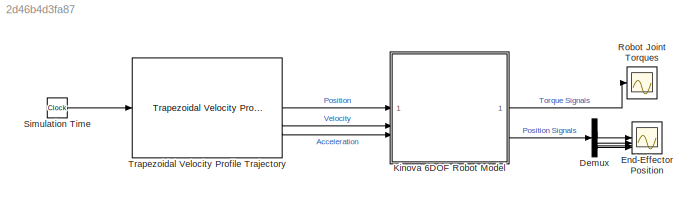
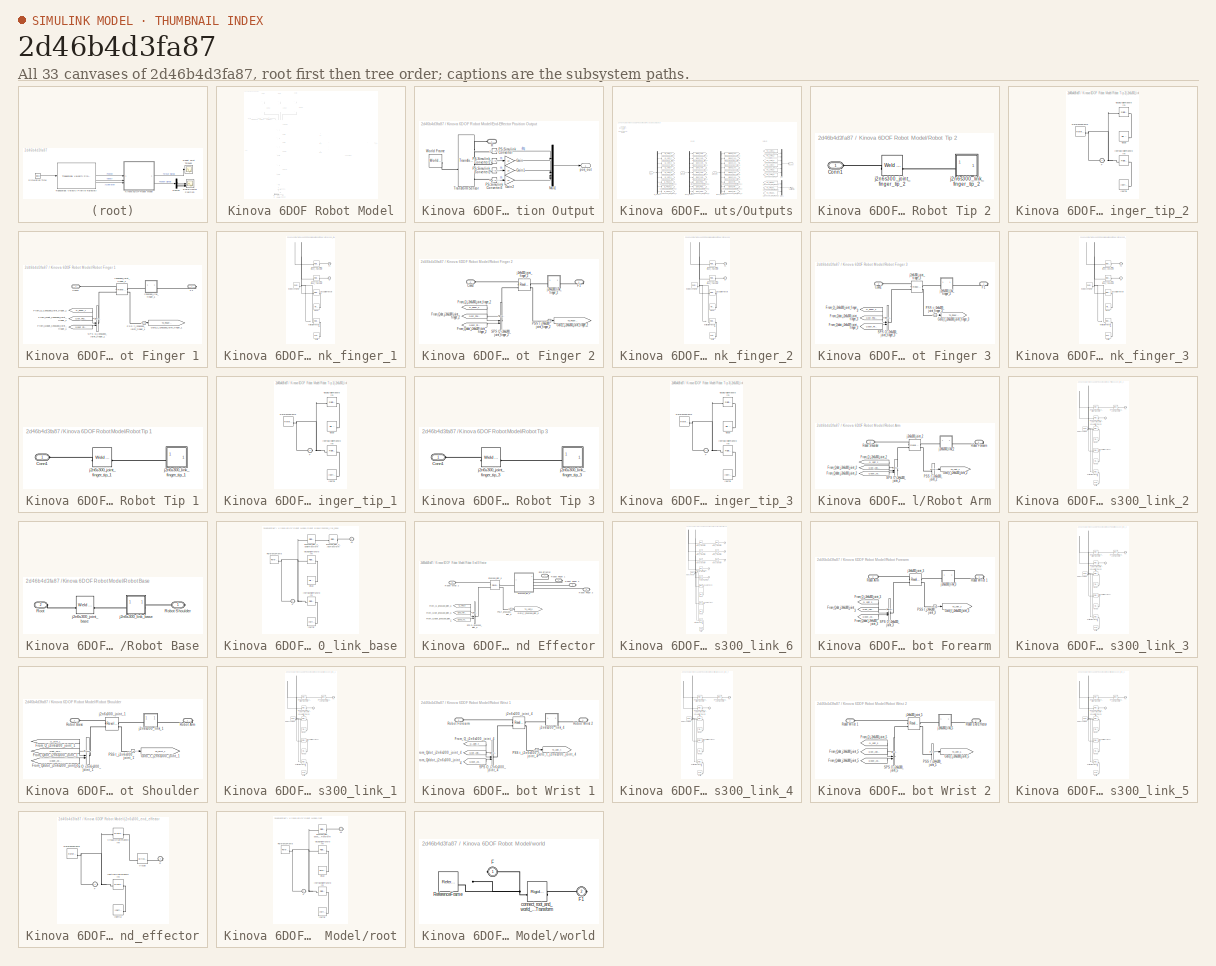
[diagram: thumbnail index - all 33 canvases of the model, root first then tree order]
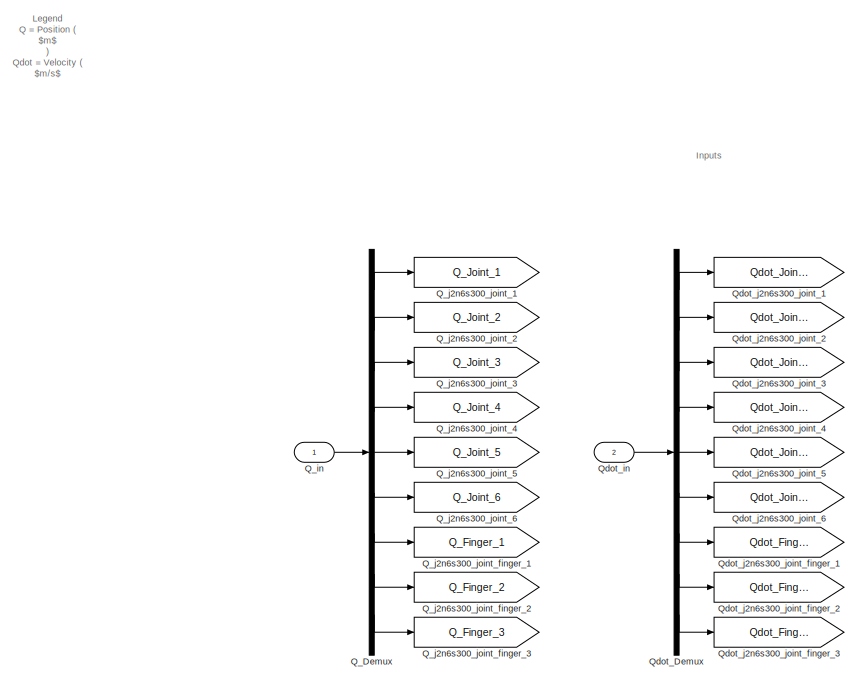
[diagram: Kinova 6DOF Robot Model/Physics Inputs/Outputs - part 1/2, left side, full height]
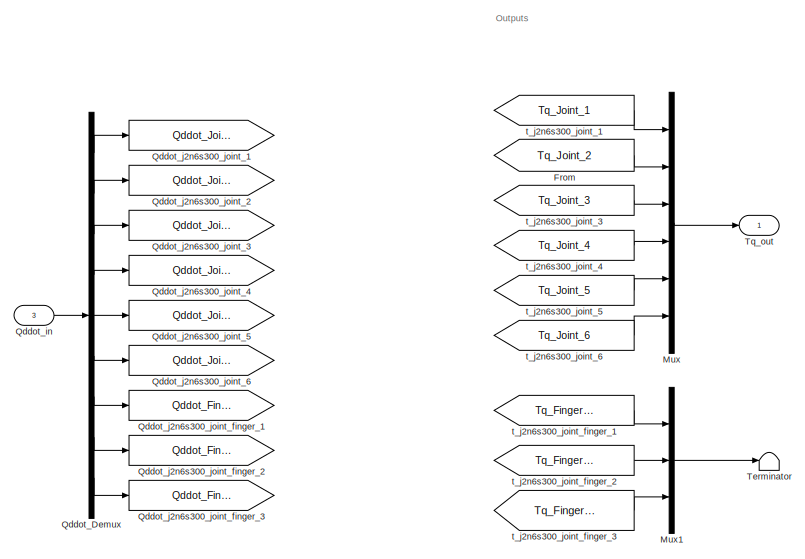
[diagram: Kinova 6DOF Robot Model/Physics Inputs/Outputs - part 2/2, right side, full height]
MODEL slx_2d46b4d3fa87
KIND model
CONFIG AbsTol = auto
CONFIG EnableMultiTasking = off
CONFIG FixedStep = auto
CONFIG MaxStep = auto
CONFIG MinStep = auto
CONFIG RelTol = 1e-3
CONFIG SampleTimeConstraint = Unconstrained
CONFIG SolverName = VariableStepAuto
CONFIG StartTime = 0.0
CONFIG StopTime = 5
WORKSPACE source: mxarray member
WORKSPACE dq0 = [0 0 0 0 0 0 0 0 0]
WORKSPACE q0 = [0 3.14159265359 3.14159265359 0 0 0 0 0 0]
WORKSPACE robotToTest: robotics.RigidBodyTree (value not decoded)
BLOCK [Demux] Demux
BLOCK [Scope] End-Effector Position
  Floating = off
  NumInputPorts = 4
  ScopeSpecificationString = Simulink.scopes.TimeScopeBlockCfg('CurrentConfiguration', extmgr.ConfigurationSet(extmgr.Configuration('Core','General UI',true),extmgr.Configuration('Core','Source UI',true),extmgr.Configuration('Sources','WiredSimulink',true,'DataLoggingVariableName','ScopeData1'),extmgr.Configuration('Visuals','Time Domain',true,'SerializedDisplays',{struct('MinYLimReal','3.32683','MaxYLimReal','199.63035','YLa...<+3910ch>
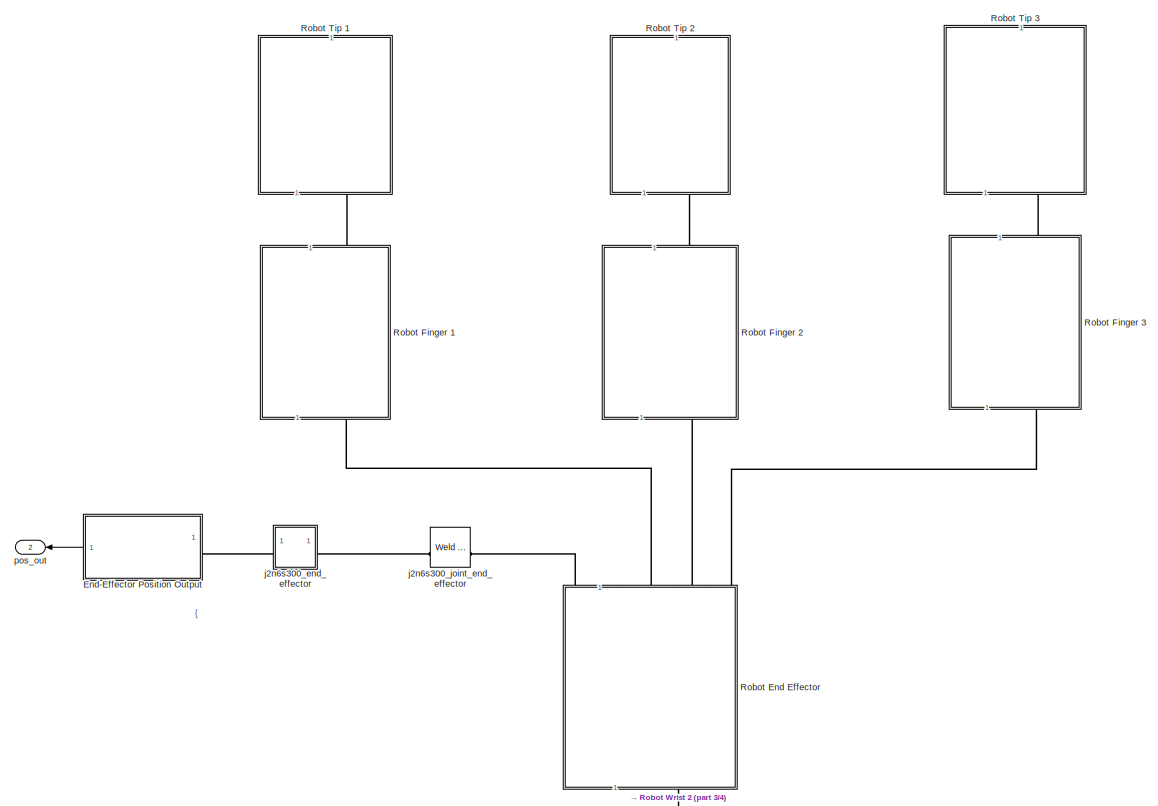
[diagram: Kinova 6DOF Robot Model - part 1/4, top left region]
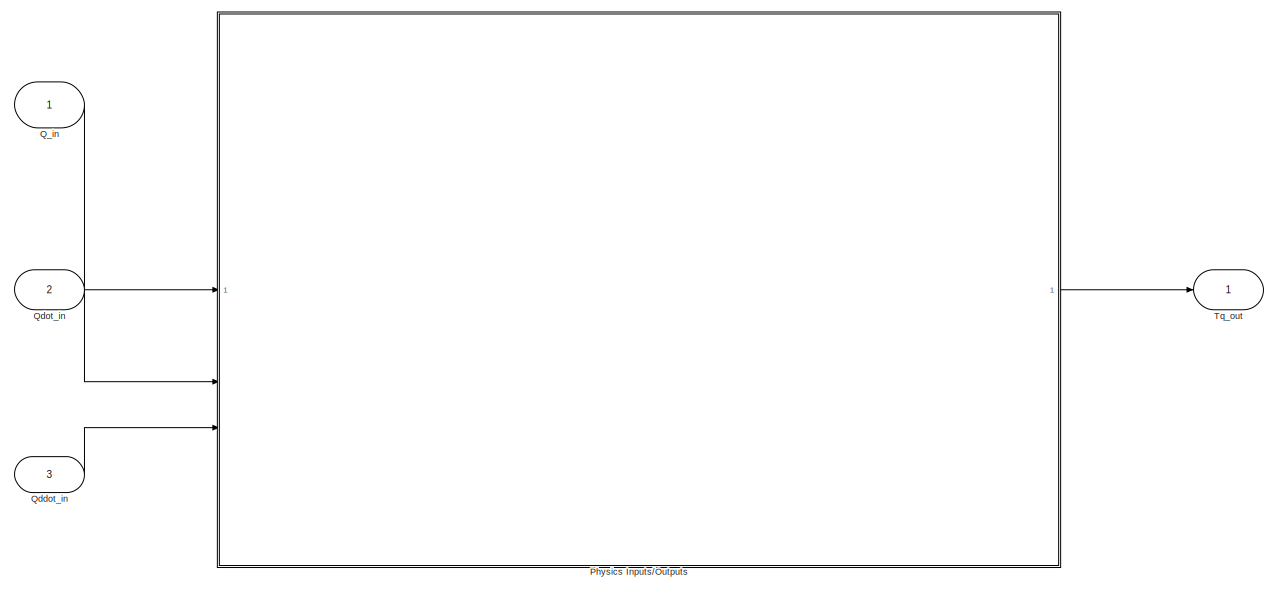
[diagram: Kinova 6DOF Robot Model - part 2/4, middle right region]
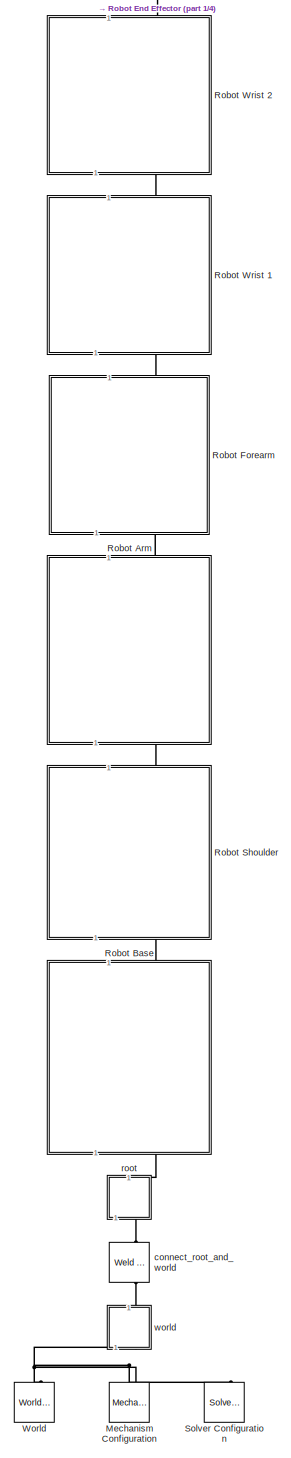
[diagram: Kinova 6DOF Robot Model - part 3/4, bottom left region]
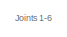
[diagram: Kinova 6DOF Robot Model - part 4/4, middle left region]
BLOCK [SubSystem] Kinova 6DOF Robot Model
BLOCK [SubSystem] Kinova 6DOF Robot Model/End-Effector Position Output
BLOCK [Gain] Kinova 6DOF Robot Model/End-Effector Position Output/Gain
  Gain = 10
BLOCK [Gain] Kinova 6DOF Robot Model/End-Effector Position Output/Gain1
  Gain = 10
BLOCK [Gain] Kinova 6DOF Robot Model/End-Effector Position Output/Gain2
  Gain = 10
BLOCK [Mux] Kinova 6DOF Robot Model/End-Effector Position Output/Mux1
  DisplayOption = bar
BLOCK [Reference] Kinova 6DOF Robot Model/End-Effector Position Output/PS-Simulink Converter  REF=nesl_utility/PS-Simulink
Converter
  SourceBlock = nesl_utility/PS-Simulink\nConverter
  SourceType = PS-Simulink\nConverter
BLOCK [Reference] Kinova 6DOF Robot Model/End-Effector Position Output/PS-Simulink Converter1  REF=nesl_utility/PS-Simulink
Converter
  SourceBlock = nesl_utility/PS-Simulink\nConverter
  SourceType = PS-Simulink\nConverter
BLOCK [Reference] Kinova 6DOF Robot Model/End-Effector Position Output/PS-Simulink Converter2  REF=nesl_utility/PS-Simulink
Converter
  SourceBlock = nesl_utility/PS-Simulink\nConverter
  SourceType = PS-Simulink\nConverter
BLOCK [Reference] Kinova 6DOF Robot Model/End-Effector Position Output/PS-Simulink Converter3  REF=nesl_utility/PS-Simulink
Converter
  SourceBlock = nesl_utility/PS-Simulink\nConverter
  SourceType = PS-Simulink\nConverter
BLOCK [PMIOPort] Kinova 6DOF Robot Model/End-Effector Position Output/R
  Side = Left
BLOCK [Reference] Kinova 6DOF Robot Model/End-Effector Position Output/Transform Sensor  REF=sm_lib/Frames and
Transforms/Transform
Sensor
  SourceBlock = sm_lib/Frames and\nTransforms/Transform\nSensor
  SourceType = Transform\nSensor
BLOCK [Reference] Kinova 6DOF Robot Model/End-Effector Position Output/World Frame  REF=sm_lib/Frames and
Transforms/World Frame
  SourceBlock = sm_lib/Frames and\nTransforms/World Frame
  SourceType = World Frame
BLOCK [Outport] Kinova 6DOF Robot Model/End-Effector Position Output/pos_out
BLOCK [Reference] Kinova 6DOF Robot Model/Mechanism Configuration  REF=sm_lib/Utilities/Mechanism
Configuration
  SourceBlock = sm_lib/Utilities/Mechanism\nConfiguration
  SourceType = Mechanism\nConfiguration
BLOCK [SubSystem] Kinova 6DOF Robot Model/Physics Inputs//Outputs
BLOCK [From] Kinova 6DOF Robot Model/Physics Inputs//Outputs/From
  GotoTag = Tq_Joint_2
  TagVisibility = global
BLOCK [Mux] Kinova 6DOF Robot Model/Physics Inputs//Outputs/Mux
  DisplayOption = bar
  Inputs = 6
BLOCK [Mux] Kinova 6DOF Robot Model/Physics Inputs//Outputs/Mux1
  DisplayOption = bar
  Inputs = 3
BLOCK [Demux] Kinova 6DOF Robot Model/Physics Inputs//Outputs/Q_Demux
  Outputs = 9
BLOCK [Inport] Kinova 6DOF Robot Model/Physics Inputs//Outputs/Q_in
BLOCK [Goto] Kinova 6DOF Robot Model/Physics Inputs//Outputs/Q_j2n6s300_joint_1
  GotoTag = Q_Joint_1
  TagVisibility = global
BLOCK [Goto] Kinova 6DOF Robot Model/Physics Inputs//Outputs/Q_j2n6s300_joint_2
  GotoTag = Q_Joint_2
  TagVisibility = global
BLOCK [Goto] Kinova 6DOF Robot Model/Physics Inputs//Outputs/Q_j2n6s300_joint_3
  GotoTag = Q_Joint_3
  TagVisibility = global
BLOCK [Goto] Kinova 6DOF Robot Model/Physics Inputs//Outputs/Q_j2n6s300_joint_4
  GotoTag = Q_Joint_4
  TagVisibility = global
BLOCK [Goto] Kinova 6DOF Robot Model/Physics Inputs//Outputs/Q_j2n6s300_joint_5
  GotoTag = Q_Joint_5
  TagVisibility = global
BLOCK [Goto] Kinova 6DOF Robot Model/Physics Inputs//Outputs/Q_j2n6s300_joint_6
  GotoTag = Q_Joint_6
  TagVisibility = global
BLOCK [Goto] Kinova 6DOF Robot Model/Physics Inputs//Outputs/Q_j2n6s300_joint_finger_1
  GotoTag = Q_Finger_1
  TagVisibility = global
BLOCK [Goto] Kinova 6DOF Robot Model/Physics Inputs//Outputs/Q_j2n6s300_joint_finger_2
  GotoTag = Q_Finger_2
  TagVisibility = global
BLOCK [Goto] Kinova 6DOF Robot Model/Physics Inputs//Outputs/Q_j2n6s300_joint_finger_3
  GotoTag = Q_Finger_3
  TagVisibility = global
BLOCK [Demux] Kinova 6DOF Robot Model/Physics Inputs//Outputs/Qddot_Demux
  Outputs = 9
BLOCK [Inport] Kinova 6DOF Robot Model/Physics Inputs//Outputs/Qddot_in
  Port = 3
BLOCK [Goto] Kinova 6DOF Robot Model/Physics Inputs//Outputs/Qddot_j2n6s300_joint_1
  GotoTag = Qddot_Joint_1
  TagVisibility = global
BLOCK [Goto] Kinova 6DOF Robot Model/Physics Inputs//Outputs/Qddot_j2n6s300_joint_2
  GotoTag = Qddot_Joint_2
  TagVisibility = global
BLOCK [Goto] Kinova 6DOF Robot Model/Physics Inputs//Outputs/Qddot_j2n6s300_joint_3
  GotoTag = Qddot_Joint_3
  TagVisibility = global
BLOCK [Goto] Kinova 6DOF Robot Model/Physics Inputs//Outputs/Qddot_j2n6s300_joint_4
  GotoTag = Qddot_Joint_4
  TagVisibility = global
BLOCK [Goto] Kinova 6DOF Robot Model/Physics Inputs//Outputs/Qddot_j2n6s300_joint_5
  GotoTag = Qddot_Joint_5
  TagVisibility = global
BLOCK [Goto] Kinova 6DOF Robot Model/Physics Inputs//Outputs/Qddot_j2n6s300_joint_6
  GotoTag = Qddot_Joint_6
  TagVisibility = global
BLOCK [Goto] Kinova 6DOF Robot Model/Physics Inputs//Outputs/Qddot_j2n6s300_joint_finger_1
  GotoTag = Qddot_Finger_1
  TagVisibility = global
BLOCK [Goto] Kinova 6DOF Robot Model/Physics Inputs//Outputs/Qddot_j2n6s300_joint_finger_2
  GotoTag = Qddot_Finger_2
  TagVisibility = global
BLOCK [Goto] Kinova 6DOF Robot Model/Physics Inputs//Outputs/Qddot_j2n6s300_joint_finger_3
  GotoTag = Qddot_Finger_3
  TagVisibility = global
BLOCK [Demux] Kinova 6DOF Robot Model/Physics Inputs//Outputs/Qdot_Demux
  Outputs = 9
BLOCK [Inport] Kinova 6DOF Robot Model/Physics Inputs//Outputs/Qdot_in
  Port = 2
BLOCK [Goto] Kinova 6DOF Robot Model/Physics Inputs//Outputs/Qdot_j2n6s300_joint_1
  GotoTag = Qdot_Joint_1
  TagVisibility = global
BLOCK [Goto] Kinova 6DOF Robot Model/Physics Inputs//Outputs/Qdot_j2n6s300_joint_2
  GotoTag = Qdot_Joint_2
  TagVisibility = global
BLOCK [Goto] Kinova 6DOF Robot Model/Physics Inputs//Outputs/Qdot_j2n6s300_joint_3
  GotoTag = Qdot_Joint_3
  TagVisibility = global
BLOCK [Goto] Kinova 6DOF Robot Model/Physics Inputs//Outputs/Qdot_j2n6s300_joint_4
  GotoTag = Qdot_Joint_4
  TagVisibility = global
BLOCK [Goto] Kinova 6DOF Robot Model/Physics Inputs//Outputs/Qdot_j2n6s300_joint_5
  GotoTag = Qdot_Joint_5
  TagVisibility = global
BLOCK [Goto] Kinova 6DOF Robot Model/Physics Inputs//Outputs/Qdot_j2n6s300_joint_6
  GotoTag = Qdot_Joint_6
  TagVisibility = global
BLOCK [Goto] Kinova 6DOF Robot Model/Physics Inputs//Outputs/Qdot_j2n6s300_joint_finger_1
  GotoTag = Qdot_Finger_1
  TagVisibility = global
BLOCK [Goto] Kinova 6DOF Robot Model/Physics Inputs//Outputs/Qdot_j2n6s300_joint_finger_2
  GotoTag = Qdot_Finger_2
  TagVisibility = global
BLOCK [Goto] Kinova 6DOF Robot Model/Physics Inputs//Outputs/Qdot_j2n6s300_joint_finger_3
  GotoTag = Qdot_Finger_3
  TagVisibility = global
BLOCK [Terminator] Kinova 6DOF Robot Model/Physics Inputs//Outputs/Terminator
BLOCK [Outport] Kinova 6DOF Robot Model/Physics Inputs//Outputs/Tq_out
BLOCK [From] Kinova 6DOF Robot Model/Physics Inputs//Outputs/t_j2n6s300_joint_1
  GotoTag = Tq_Joint_1
  TagVisibility = global
BLOCK [From] Kinova 6DOF Robot Model/Physics Inputs//Outputs/t_j2n6s300_joint_3
  GotoTag = Tq_Joint_3
  TagVisibility = global
BLOCK [From] Kinova 6DOF Robot Model/Physics Inputs//Outputs/t_j2n6s300_joint_4
  GotoTag = Tq_Joint_4
  TagVisibility = global
BLOCK [From] Kinova 6DOF Robot Model/Physics Inputs//Outputs/t_j2n6s300_joint_5
  GotoTag = Tq_Joint_5
  TagVisibility = global
BLOCK [From] Kinova 6DOF Robot Model/Physics Inputs//Outputs/t_j2n6s300_joint_6
  GotoTag = Tq_Joint_6
  TagVisibility = global
BLOCK [From] Kinova 6DOF Robot Model/Physics Inputs//Outputs/t_j2n6s300_joint_finger_1
  GotoTag = Tq_Finger_1
  TagVisibility = global
BLOCK [From] Kinova 6DOF Robot Model/Physics Inputs//Outputs/t_j2n6s300_joint_finger_2
  GotoTag = Tq_Finger_2
  TagVisibility = global
BLOCK [From] Kinova 6DOF Robot Model/Physics Inputs//Outputs/t_j2n6s300_joint_finger_3
  GotoTag = Tq_Finger_3
  TagVisibility = global
BLOCK [Inport] Kinova 6DOF Robot Model/Q_in
BLOCK [Inport] Kinova 6DOF Robot Model/Qddot_in
  Port = 3
BLOCK [Inport] Kinova 6DOF Robot Model/Qdot_in
  Port = 2
BLOCK [SubSystem] Kinova 6DOF Robot Model/Robot Arm
  NameLocation = right
BLOCK [From] Kinova 6DOF Robot Model/Robot Arm/From_Q_j2n6s300_joint_2
  GotoTag = Q_Joint_2
  TagVisibility = global
BLOCK [From] Kinova 6DOF Robot Model/Robot Arm/From_Qddot_j2n6s300_joint_2
  GotoTag = Qddot_Joint_2
  TagVisibility = global
BLOCK [From] Kinova 6DOF Robot Model/Robot Arm/From_Qdot_j2n6s300_joint_2
  GotoTag = Qdot_Joint_2
  TagVisibility = global
BLOCK [Goto] Kinova 6DOF Robot Model/Robot Arm/Goto_t_j2n6s300_joint_2
  GotoTag = Tq_Joint_2
  TagVisibility = global
BLOCK [Reference] Kinova 6DOF Robot Model/Robot Arm/PSS t_j2n6s300_joint_2  REF=nesl_utility/PS-Simulink
Converter
  SourceBlock = nesl_utility/PS-Simulink\nConverter
  SourceType = PS-Simulink\nConverter
BLOCK [PMIOPort] Kinova 6DOF Robot Model/Robot Arm/Robot Forearm
  Side = Right
BLOCK [PMIOPort] Kinova 6DOF Robot Model/Robot Arm/Robot Shoulder
  Port = 2
  Side = Left
BLOCK [Reference] Kinova 6DOF Robot Model/Robot Arm/SPS Q_j2n6s300_joint_2  REF=nesl_utility/Simulink-PS
Converter
  SourceBlock = nesl_utility/Simulink-PS\nConverter
  SourceType = Simulink-PS\nConverter
BLOCK [Reference] Kinova 6DOF Robot Model/Robot Arm/j2n6s300_joint_2  REF=sm_lib/Joints/Revolute Joint
  SourceBlock = sm_lib/Joints/Revolute Joint
  SourceType = Revolute Joint
BLOCK [SubSystem] Kinova 6DOF Robot Model/Robot Arm/j2n6s300_link_2
BLOCK [PMIOPort] Kinova 6DOF Robot Model/Robot Arm/j2n6s300_link_2/F
  Side = Left
BLOCK [PMIOPort] Kinova 6DOF Robot Model/Robot Arm/j2n6s300_link_2/F1
  Port = 2
  Side = Right
BLOCK [Reference] Kinova 6DOF Robot Model/Robot Arm/j2n6s300_link_2/Inertia  REF=sm_lib/Body Elements/Inertia
  SourceBlock = sm_lib/Body Elements/Inertia
  SourceType = Inertia
BLOCK [Reference] Kinova 6DOF Robot Model/Robot Arm/j2n6s300_link_2/InertiaOriginTransform  REF=sm_lib/Frames and
Transforms/Rigid
Transform
  SourceBlock = sm_lib/Frames and\nTransforms/Rigid\nTransform
  SourceType = Rigid\nTransform
BLOCK [Reference] Kinova 6DOF Robot Model/Robot Arm/j2n6s300_link_2/ReferenceFrame  REF=sm_lib/Frames and
Transforms/Reference
Frame
  SourceBlock = sm_lib/Frames and\nTransforms/Reference\nFrame
  SourceType = Reference\nFrame
BLOCK [Reference] Kinova 6DOF Robot Model/Robot Arm/j2n6s300_link_2/Visual  REF=sm_lib/Body Elements/File Solid
  SourceBlock = sm_lib/Body Elements/File Solid
  SourceType = File Solid
BLOCK [Reference] Kinova 6DOF Robot Model/Robot Arm/j2n6s300_link_2/Visual1  REF=sm_lib/Body Elements/File Solid
  SourceBlock = sm_lib/Body Elements/File Solid
  SourceType = File Solid
BLOCK [Reference] Kinova 6DOF Robot Model/Robot Arm/j2n6s300_link_2/VisualOrigin1Transform  REF=sm_lib/Frames and
Transforms/Rigid
Transform
  SourceBlock = sm_lib/Frames and\nTransforms/Rigid\nTransform
  SourceType = Rigid\nTransform
BLOCK [Reference] Kinova 6DOF Robot Model/Robot Arm/j2n6s300_link_2/VisualOriginTransform  REF=sm_lib/Frames and
Transforms/Rigid
Transform
  SourceBlock = sm_lib/Frames and\nTransforms/Rigid\nTransform
  SourceType = Rigid\nTransform
BLOCK [Reference] Kinova 6DOF Robot Model/Robot Arm/j2n6s300_link_2/j2n6s300_joint_2_AxisInvTransform  REF=sm_lib/Frames and
Transforms/Rigid
Transform
  SourceBlock = sm_lib/Frames and\nTransforms/Rigid\nTransform
  SourceType = Rigid\nTransform
BLOCK [Reference] Kinova 6DOF Robot Model/Robot Arm/j2n6s300_link_2/j2n6s300_joint_3_AxisTransform  REF=sm_lib/Frames and
Transforms/Rigid
Transform
  SourceBlock = sm_lib/Frames and\nTransforms/Rigid\nTransform
  SourceType = Rigid\nTransform
BLOCK [Reference] Kinova 6DOF Robot Model/Robot Arm/j2n6s300_link_2/j2n6s300_joint_3_OriginTransform  REF=sm_lib/Frames and
Transforms/Rigid
Transform
  SourceBlock = sm_lib/Frames and\nTransforms/Rigid\nTransform
  SourceType = Rigid\nTransform
BLOCK [SubSystem] Kinova 6DOF Robot Model/Robot Base
  NameLocation = right
BLOCK [PMIOPort] Kinova 6DOF Robot Model/Robot Base/Robot Shoulder
  Side = Right
BLOCK [PMIOPort] Kinova 6DOF Robot Model/Robot Base/Root
  Port = 2
  Side = Left
BLOCK [Reference] Kinova 6DOF Robot Model/Robot Base/j2n6s300_joint_base  REF=sm_lib/Joints/Weld Joint
  SourceBlock = sm_lib/Joints/Weld Joint
  SourceType = Weld Joint
BLOCK [SubSystem] Kinova 6DOF Robot Model/Robot Base/j2n6s300_link_base
BLOCK [PMIOPort] Kinova 6DOF Robot Model/Robot Base/j2n6s300_link_base/F
  Side = Left
BLOCK [PMIOPort] Kinova 6DOF Robot Model/Robot Base/j2n6s300_link_base/F1
  Port = 2
  Side = Right
BLOCK [Reference] Kinova 6DOF Robot Model/Robot Base/j2n6s300_link_base/Inertia  REF=sm_lib/Body Elements/Inertia
  SourceBlock = sm_lib/Body Elements/Inertia
  SourceType = Inertia
BLOCK [Reference] Kinova 6DOF Robot Model/Robot Base/j2n6s300_link_base/InertiaOriginTransform  REF=sm_lib/Frames and
Transforms/Rigid
Transform
  SourceBlock = sm_lib/Frames and\nTransforms/Rigid\nTransform
  SourceType = Rigid\nTransform
BLOCK [Reference] Kinova 6DOF Robot Model/Robot Base/j2n6s300_link_base/ReferenceFrame  REF=sm_lib/Frames and
Transforms/Reference
Frame
  SourceBlock = sm_lib/Frames and\nTransforms/Reference\nFrame
  SourceType = Reference\nFrame
BLOCK [Reference] Kinova 6DOF Robot Model/Robot Base/j2n6s300_link_base/Visual  REF=sm_lib/Body Elements/File Solid
  SourceBlock = sm_lib/Body Elements/File Solid
  SourceType = File Solid
BLOCK [Reference] Kinova 6DOF Robot Model/Robot Base/j2n6s300_link_base/VisualOriginTransform  REF=sm_lib/Frames and
Transforms/Rigid
Transform
  SourceBlock = sm_lib/Frames and\nTransforms/Rigid\nTransform
  SourceType = Rigid\nTransform
BLOCK [Reference] Kinova 6DOF Robot Model/Robot Base/j2n6s300_link_base/j2n6s300_joint_1_AxisTransform  REF=sm_lib/Frames and
Transforms/Rigid
Transform
  SourceBlock = sm_lib/Frames and\nTransforms/Rigid\nTransform
  SourceType = Rigid\nTransform
BLOCK [Reference] Kinova 6DOF Robot Model/Robot Base/j2n6s300_link_base/j2n6s300_joint_1_OriginTransform  REF=sm_lib/Frames and
Transforms/Rigid
Transform
  SourceBlock = sm_lib/Frames and\nTransforms/Rigid\nTransform
  SourceType = Rigid\nTransform
BLOCK [SubSystem] Kinova 6DOF Robot Model/Robot End Effector
  NameLocation = right
BLOCK [PMIOPort] Kinova 6DOF Robot Model/Robot End Effector/End Effector
  NameLocation = top
  Side = Right
BLOCK [From] Kinova 6DOF Robot Model/Robot End Effector/From_Q_j2n6s300_joint_6
  GotoTag = Q_Joint_6
  TagVisibility = global
BLOCK [From] Kinova 6DOF Robot Model/Robot End Effector/From_Qddot_j2n6s300_joint_6
  GotoTag = Qddot_Joint_6
  TagVisibility = global
BLOCK [From] Kinova 6DOF Robot Model/Robot End Effector/From_Qdot_j2n6s300_joint_6
  GotoTag = Qdot_Joint_6
  TagVisibility = global
BLOCK [Goto] Kinova 6DOF Robot Model/Robot End Effector/Goto_t_j2n6s300_joint_6
  GotoTag = Tq_Joint_6
  TagVisibility = global
BLOCK [Reference] Kinova 6DOF Robot Model/Robot End Effector/PSS t_j2n6s300_joint_6  REF=nesl_utility/PS-Simulink
Converter
  SourceBlock = nesl_utility/PS-Simulink\nConverter
  SourceType = PS-Simulink\nConverter
BLOCK [PMIOPort] Kinova 6DOF Robot Model/Robot End Effector/Robot Finger 1
  NameLocation = top
  Port = 2
  Side = Right
BLOCK [PMIOPort] Kinova 6DOF Robot Model/Robot End Effector/Robot Finger 2
  NameLocation = top
  Port = 3
  Side = Right
BLOCK [PMIOPort] Kinova 6DOF Robot Model/Robot End Effector/Robot Finger 3
  NameLocation = top
  Port = 4
  Side = Right
BLOCK [PMIOPort] Kinova 6DOF Robot Model/Robot End Effector/Robot Wrist 2
  Port = 5
  Side = Left
BLOCK [Reference] Kinova 6DOF Robot Model/Robot End Effector/SPS Q_j2n6s300_joint_6  REF=nesl_utility/Simulink-PS
Converter
  SourceBlock = nesl_utility/Simulink-PS\nConverter
  SourceType = Simulink-PS\nConverter
BLOCK [Reference] Kinova 6DOF Robot Model/Robot End Effector/j2n6s300_joint_6  REF=sm_lib/Joints/Revolute Joint
  SourceBlock = sm_lib/Joints/Revolute Joint
  SourceType = Revolute Joint
BLOCK [SubSystem] Kinova 6DOF Robot Model/Robot End Effector/j2n6s300_link_6
BLOCK [PMIOPort] Kinova 6DOF Robot Model/Robot End Effector/j2n6s300_link_6/F
  Port = 5
  Side = Left
BLOCK [PMIOPort] Kinova 6DOF Robot Model/Robot End Effector/j2n6s300_link_6/F1
  Side = Right
BLOCK [PMIOPort] Kinova 6DOF Robot Model/Robot End Effector/j2n6s300_link_6/F2
  Port = 2
  Side = Right
BLOCK [PMIOPort] Kinova 6DOF Robot Model/Robot End Effector/j2n6s300_link_6/F3
  Port = 3
  Side = Right
BLOCK [PMIOPort] Kinova 6DOF Robot Model/Robot End Effector/j2n6s300_link_6/F4
  Port = 4
  Side = Right
BLOCK [Reference] Kinova 6DOF Robot Model/Robot End Effector/j2n6s300_link_6/Inertia  REF=sm_lib/Body Elements/Inertia
  SourceBlock = sm_lib/Body Elements/Inertia
  SourceType = Inertia
BLOCK [Reference] Kinova 6DOF Robot Model/Robot End Effector/j2n6s300_link_6/InertiaOriginTransform  REF=sm_lib/Frames and
Transforms/Rigid
Transform
  SourceBlock = sm_lib/Frames and\nTransforms/Rigid\nTransform
  SourceType = Rigid\nTransform
BLOCK [Reference] Kinova 6DOF Robot Model/Robot End Effector/j2n6s300_link_6/ReferenceFrame  REF=sm_lib/Frames and
Transforms/Reference
Frame
  SourceBlock = sm_lib/Frames and\nTransforms/Reference\nFrame
  SourceType = Reference\nFrame
BLOCK [Reference] Kinova 6DOF Robot Model/Robot End Effector/j2n6s300_link_6/Visual  REF=sm_lib/Body Elements/File Solid
  SourceBlock = sm_lib/Body Elements/File Solid
  SourceType = File Solid
BLOCK [Reference] Kinova 6DOF Robot Model/Robot End Effector/j2n6s300_link_6/Visual1  REF=sm_lib/Body Elements/File Solid
  SourceBlock = sm_lib/Body Elements/File Solid
  SourceType = File Solid
BLOCK [Reference] Kinova 6DOF Robot Model/Robot End Effector/j2n6s300_link_6/VisualOrigin1Transform  REF=sm_lib/Frames and
Transforms/Rigid
Transform
  SourceBlock = sm_lib/Frames and\nTransforms/Rigid\nTransform
  SourceType = Rigid\nTransform
BLOCK [Reference] Kinova 6DOF Robot Model/Robot End Effector/j2n6s300_link_6/VisualOriginTransform  REF=sm_lib/Frames and
Transforms/Rigid
Transform
  SourceBlock = sm_lib/Frames and\nTransforms/Rigid\nTransform
  SourceType = Rigid\nTransform
BLOCK [Reference] Kinova 6DOF Robot Model/Robot End Effector/j2n6s300_link_6/j2n6s300_joint_6_AxisInvTransform  REF=sm_lib/Frames and
Transforms/Rigid
Transform
  SourceBlock = sm_lib/Frames and\nTransforms/Rigid\nTransform
  SourceType = Rigid\nTransform
BLOCK [Reference] Kinova 6DOF Robot Model/Robot End Effector/j2n6s300_link_6/j2n6s300_joint_end_effector_OriginTransform  REF=sm_lib/Frames and
Transforms/Rigid
Transform
  SourceBlock = sm_lib/Frames and\nTransforms/Rigid\nTransform
  SourceType = Rigid\nTransform
BLOCK [Reference] Kinova 6DOF Robot Model/Robot End Effector/j2n6s300_link_6/j2n6s300_joint_finger_1_AxisTransform  REF=sm_lib/Frames and
Transforms/Rigid
Transform
  SourceBlock = sm_lib/Frames and\nTransforms/Rigid\nTransform
  SourceType = Rigid\nTransform
BLOCK [Reference] Kinova 6DOF Robot Model/Robot End Effector/j2n6s300_link_6/j2n6s300_joint_finger_1_OriginTransform  REF=sm_lib/Frames and
Transforms/Rigid
Transform
  SourceBlock = sm_lib/Frames and\nTransforms/Rigid\nTransform
  SourceType = Rigid\nTransform
BLOCK [Reference] Kinova 6DOF Robot Model/Robot End Effector/j2n6s300_link_6/j2n6s300_joint_finger_2_AxisTransform  REF=sm_lib/Frames and
Transforms/Rigid
Transform
  SourceBlock = sm_lib/Frames and\nTransforms/Rigid\nTransform
  SourceType = Rigid\nTransform
BLOCK [Reference] Kinova 6DOF Robot Model/Robot End Effector/j2n6s300_link_6/j2n6s300_joint_finger_2_OriginTransform  REF=sm_lib/Frames and
Transforms/Rigid
Transform
  SourceBlock = sm_lib/Frames and\nTransforms/Rigid\nTransform
  SourceType = Rigid\nTransform
BLOCK [Reference] Kinova 6DOF Robot Model/Robot End Effector/j2n6s300_link_6/j2n6s300_joint_finger_3_AxisTransform  REF=sm_lib/Frames and
Transforms/Rigid
Transform
  SourceBlock = sm_lib/Frames and\nTransforms/Rigid\nTransform
  SourceType = Rigid\nTransform
BLOCK [Reference] Kinova 6DOF Robot Model/Robot End Effector/j2n6s300_link_6/j2n6s300_joint_finger_3_OriginTransform  REF=sm_lib/Frames and
Transforms/Rigid
Transform
  SourceBlock = sm_lib/Frames and\nTransforms/Rigid\nTransform
  SourceType = Rigid\nTransform
BLOCK [SubSystem] Kinova 6DOF Robot Model/Robot Finger 1
  NameLocation = left
BLOCK [PMIOPort] Kinova 6DOF Robot Model/Robot Finger 1/Conn2
  Port = 2
  Side = Left
BLOCK [PMIOPort] Kinova 6DOF Robot Model/Robot Finger 1/F1
  Side = Right
BLOCK [From] Kinova 6DOF Robot Model/Robot Finger 1/From_Q_j2n6s300_joint_finger_1
  GotoTag = Q_Finger_1
  TagVisibility = global
BLOCK [From] Kinova 6DOF Robot Model/Robot Finger 1/From_Qddot_j2n6s300_joint_finger_1
  GotoTag = Qddot_Finger_1
  TagVisibility = global
BLOCK [From] Kinova 6DOF Robot Model/Robot Finger 1/From_Qdot_j2n6s300_joint_finger_1
  GotoTag = Qdot_Finger_1
  TagVisibility = global
BLOCK [Goto] Kinova 6DOF Robot Model/Robot Finger 1/Goto_t_j2n6s300_joint_finger_1
  GotoTag = Tq_Finger_1
  TagVisibility = global
BLOCK [Reference] Kinova 6DOF Robot Model/Robot Finger 1/PSS t_j2n6s300_joint_finger_1  REF=nesl_utility/PS-Simulink
Converter
  SourceBlock = nesl_utility/PS-Simulink\nConverter
  SourceType = PS-Simulink\nConverter
BLOCK [Reference] Kinova 6DOF Robot Model/Robot Finger 1/SPS Q_j2n6s300_joint_finger_1  REF=nesl_utility/Simulink-PS
Converter
  SourceBlock = nesl_utility/Simulink-PS\nConverter
  SourceType = Simulink-PS\nConverter
BLOCK [Reference] Kinova 6DOF Robot Model/Robot Finger 1/j2n6s300_joint_finger_1  REF=sm_lib/Joints/Revolute Joint
  SourceBlock = sm_lib/Joints/Revolute Joint
  SourceType = Revolute Joint
BLOCK [SubSystem] Kinova 6DOF Robot Model/Robot Finger 1/j2n6s300_link_finger_1
BLOCK [PMIOPort] Kinova 6DOF Robot Model/Robot Finger 1/j2n6s300_link_finger_1/F
  Side = Left
BLOCK [PMIOPort] Kinova 6DOF Robot Model/Robot Finger 1/j2n6s300_link_finger_1/F1
  Port = 2
  Side = Right
BLOCK [Reference] Kinova 6DOF Robot Model/Robot Finger 1/j2n6s300_link_finger_1/Inertia  REF=sm_lib/Body Elements/Inertia
  SourceBlock = sm_lib/Body Elements/Inertia
  SourceType = Inertia
BLOCK [Reference] Kinova 6DOF Robot Model/Robot Finger 1/j2n6s300_link_finger_1/InertiaOriginTransform  REF=sm_lib/Frames and
Transforms/Rigid
Transform
  SourceBlock = sm_lib/Frames and\nTransforms/Rigid\nTransform
  SourceType = Rigid\nTransform
BLOCK [Reference] Kinova 6DOF Robot Model/Robot Finger 1/j2n6s300_link_finger_1/ReferenceFrame  REF=sm_lib/Frames and
Transforms/Reference
Frame
  SourceBlock = sm_lib/Frames and\nTransforms/Reference\nFrame
  SourceType = Reference\nFrame
BLOCK [Reference] Kinova 6DOF Robot Model/Robot Finger 1/j2n6s300_link_finger_1/Visual  REF=sm_lib/Body Elements/File Solid
  SourceBlock = sm_lib/Body Elements/File Solid
  SourceType = File Solid
BLOCK [Reference] Kinova 6DOF Robot Model/Robot Finger 1/j2n6s300_link_finger_1/VisualOriginTransform  REF=sm_lib/Frames and
Transforms/Rigid
Transform
  SourceBlock = sm_lib/Frames and\nTransforms/Rigid\nTransform
  SourceType = Rigid\nTransform
BLOCK [Reference] Kinova 6DOF Robot Model/Robot Finger 1/j2n6s300_link_finger_1/j2n6s300_joint_finger_1_AxisInvTransform  REF=sm_lib/Frames and
Transforms/Rigid
Transform
  SourceBlock = sm_lib/Frames and\nTransforms/Rigid\nTransform
  SourceType = Rigid\nTransform
BLOCK [Reference] Kinova 6DOF Robot Model/Robot Finger 1/j2n6s300_link_finger_1/j2n6s300_joint_finger_tip_1_OriginTransform  REF=sm_lib/Frames and
Transforms/Rigid
Transform
  SourceBlock = sm_lib/Frames and\nTransforms/Rigid\nTransform
  SourceType = Rigid\nTransform
BLOCK [SubSystem] Kinova 6DOF Robot Model/Robot Finger 2
  NameLocation = left
BLOCK [PMIOPort] Kinova 6DOF Robot Model/Robot Finger 2/Conn2
  Port = 2
  Side = Left
BLOCK [PMIOPort] Kinova 6DOF Robot Model/Robot Finger 2/F1
  Side = Right
BLOCK [From] Kinova 6DOF Robot Model/Robot Finger 2/From_Q_j2n6s300_joint_finger_2
  GotoTag = Q_Finger_2
  TagVisibility = global
BLOCK [From] Kinova 6DOF Robot Model/Robot Finger 2/From_Qddot_j2n6s300_joint_finger_2
  GotoTag = Qddot_Finger_2
  TagVisibility = global
BLOCK [From] Kinova 6DOF Robot Model/Robot Finger 2/From_Qdot_j2n6s300_joint_finger_2
  GotoTag = Qdot_Finger_2
  TagVisibility = global
BLOCK [Goto] Kinova 6DOF Robot Model/Robot Finger 2/Goto_t_j2n6s300_joint_finger_2
  GotoTag = Tq_Finger_2
  TagVisibility = global
BLOCK [Reference] Kinova 6DOF Robot Model/Robot Finger 2/PSS t_j2n6s300_joint_finger_2  REF=nesl_utility/PS-Simulink
Converter
  SourceBlock = nesl_utility/PS-Simulink\nConverter
  SourceType = PS-Simulink\nConverter
BLOCK [Reference] Kinova 6DOF Robot Model/Robot Finger 2/SPS Q_j2n6s300_joint_finger_2  REF=nesl_utility/Simulink-PS
Converter
  SourceBlock = nesl_utility/Simulink-PS\nConverter
  SourceType = Simulink-PS\nConverter
BLOCK [Reference] Kinova 6DOF Robot Model/Robot Finger 2/j2n6s300_joint_finger_2  REF=sm_lib/Joints/Revolute Joint
  SourceBlock = sm_lib/Joints/Revolute Joint
  SourceType = Revolute Joint
BLOCK [SubSystem] Kinova 6DOF Robot Model/Robot Finger 2/j2n6s300_link_finger_2
BLOCK [PMIOPort] Kinova 6DOF Robot Model/Robot Finger 2/j2n6s300_link_finger_2/F
  Side = Left
BLOCK [PMIOPort] Kinova 6DOF Robot Model/Robot Finger 2/j2n6s300_link_finger_2/F1
  Port = 2
  Side = Right
BLOCK [Reference] Kinova 6DOF Robot Model/Robot Finger 2/j2n6s300_link_finger_2/Inertia  REF=sm_lib/Body Elements/Inertia
  SourceBlock = sm_lib/Body Elements/Inertia
  SourceType = Inertia
BLOCK [Reference] Kinova 6DOF Robot Model/Robot Finger 2/j2n6s300_link_finger_2/InertiaOriginTransform  REF=sm_lib/Frames and
Transforms/Rigid
Transform
  SourceBlock = sm_lib/Frames and\nTransforms/Rigid\nTransform
  SourceType = Rigid\nTransform
BLOCK [Reference] Kinova 6DOF Robot Model/Robot Finger 2/j2n6s300_link_finger_2/ReferenceFrame  REF=sm_lib/Frames and
Transforms/Reference
Frame
  SourceBlock = sm_lib/Frames and\nTransforms/Reference\nFrame
  SourceType = Reference\nFrame
BLOCK [Reference] Kinova 6DOF Robot Model/Robot Finger 2/j2n6s300_link_finger_2/Visual  REF=sm_lib/Body Elements/File Solid
  SourceBlock = sm_lib/Body Elements/File Solid
  SourceType = File Solid
BLOCK [Reference] Kinova 6DOF Robot Model/Robot Finger 2/j2n6s300_link_finger_2/VisualOriginTransform  REF=sm_lib/Frames and
Transforms/Rigid
Transform
  SourceBlock = sm_lib/Frames and\nTransforms/Rigid\nTransform
  SourceType = Rigid\nTransform
BLOCK [Reference] Kinova 6DOF Robot Model/Robot Finger 2/j2n6s300_link_finger_2/j2n6s300_joint_finger_2_AxisInvTransform  REF=sm_lib/Frames and
Transforms/Rigid
Transform
  SourceBlock = sm_lib/Frames and\nTransforms/Rigid\nTransform
  SourceType = Rigid\nTransform
BLOCK [Reference] Kinova 6DOF Robot Model/Robot Finger 2/j2n6s300_link_finger_2/j2n6s300_joint_finger_tip_2_OriginTransform  REF=sm_lib/Frames and
Transforms/Rigid
Transform
  SourceBlock = sm_lib/Frames and\nTransforms/Rigid\nTransform
  SourceType = Rigid\nTransform
BLOCK [SubSystem] Kinova 6DOF Robot Model/Robot Finger 3
  NameLocation = left
BLOCK [PMIOPort] Kinova 6DOF Robot Model/Robot Finger 3/Conn1
  Port = 2
  Side = Left
BLOCK [PMIOPort] Kinova 6DOF Robot Model/Robot Finger 3/F1
  Side = Right
BLOCK [From] Kinova 6DOF Robot Model/Robot Finger 3/From_Q_j2n6s300_joint_finger_3
  GotoTag = Q_Finger_3
  TagVisibility = global
BLOCK [From] Kinova 6DOF Robot Model/Robot Finger 3/From_Qddot_j2n6s300_joint_finger_3
  GotoTag = Qddot_Finger_3
  TagVisibility = global
BLOCK [From] Kinova 6DOF Robot Model/Robot Finger 3/From_Qdot_j2n6s300_joint_finger_3
  GotoTag = Qdot_Finger_3
  TagVisibility = global
BLOCK [Goto] Kinova 6DOF Robot Model/Robot Finger 3/Goto_t_j2n6s300_joint_finger_3
  GotoTag = Tq_Finger_3
  TagVisibility = global
BLOCK [Reference] Kinova 6DOF Robot Model/Robot Finger 3/PSS t_j2n6s300_joint_finger_3  REF=nesl_utility/PS-Simulink
Converter
  SourceBlock = nesl_utility/PS-Simulink\nConverter
  SourceType = PS-Simulink\nConverter
BLOCK [Reference] Kinova 6DOF Robot Model/Robot Finger 3/SPS Q_j2n6s300_joint_finger_3  REF=nesl_utility/Simulink-PS
Converter
  SourceBlock = nesl_utility/Simulink-PS\nConverter
  SourceType = Simulink-PS\nConverter
BLOCK [Reference] Kinova 6DOF Robot Model/Robot Finger 3/j2n6s300_joint_finger_3  REF=sm_lib/Joints/Revolute Joint
  SourceBlock = sm_lib/Joints/Revolute Joint
  SourceType = Revolute Joint
BLOCK [SubSystem] Kinova 6DOF Robot Model/Robot Finger 3/j2n6s300_link_finger_3
BLOCK [PMIOPort] Kinova 6DOF Robot Model/Robot Finger 3/j2n6s300_link_finger_3/F
  Side = Left
BLOCK [PMIOPort] Kinova 6DOF Robot Model/Robot Finger 3/j2n6s300_link_finger_3/F1
  Port = 2
  Side = Right
BLOCK [Reference] Kinova 6DOF Robot Model/Robot Finger 3/j2n6s300_link_finger_3/Inertia  REF=sm_lib/Body Elements/Inertia
  SourceBlock = sm_lib/Body Elements/Inertia
  SourceType = Inertia
BLOCK [Reference] Kinova 6DOF Robot Model/Robot Finger 3/j2n6s300_link_finger_3/InertiaOriginTransform  REF=sm_lib/Frames and
Transforms/Rigid
Transform
  SourceBlock = sm_lib/Frames and\nTransforms/Rigid\nTransform
  SourceType = Rigid\nTransform
BLOCK [Reference] Kinova 6DOF Robot Model/Robot Finger 3/j2n6s300_link_finger_3/ReferenceFrame  REF=sm_lib/Frames and
Transforms/Reference
Frame
  SourceBlock = sm_lib/Frames and\nTransforms/Reference\nFrame
  SourceType = Reference\nFrame
BLOCK [Reference] Kinova 6DOF Robot Model/Robot Finger 3/j2n6s300_link_finger_3/Visual  REF=sm_lib/Body Elements/File Solid
  SourceBlock = sm_lib/Body Elements/File Solid
  SourceType = File Solid
BLOCK [Reference] Kinova 6DOF Robot Model/Robot Finger 3/j2n6s300_link_finger_3/VisualOriginTransform  REF=sm_lib/Frames and
Transforms/Rigid
Transform
  SourceBlock = sm_lib/Frames and\nTransforms/Rigid\nTransform
  SourceType = Rigid\nTransform
BLOCK [Reference] Kinova 6DOF Robot Model/Robot Finger 3/j2n6s300_link_finger_3/j2n6s300_joint_finger_3_AxisInvTransform  REF=sm_lib/Frames and
Transforms/Rigid
Transform
  SourceBlock = sm_lib/Frames and\nTransforms/Rigid\nTransform
  SourceType = Rigid\nTransform
BLOCK [Reference] Kinova 6DOF Robot Model/Robot Finger 3/j2n6s300_link_finger_3/j2n6s300_joint_finger_tip_3_OriginTransform  REF=sm_lib/Frames and
Transforms/Rigid
Transform
  SourceBlock = sm_lib/Frames and\nTransforms/Rigid\nTransform
  SourceType = Rigid\nTransform
BLOCK [SubSystem] Kinova 6DOF Robot Model/Robot Forearm
  NameLocation = right
BLOCK [From] Kinova 6DOF Robot Model/Robot Forearm/From_Q_j2n6s300_joint_3
  GotoTag = Q_Joint_3
  TagVisibility = global
BLOCK [From] Kinova 6DOF Robot Model/Robot Forearm/From_Qddot_j2n6s300_joint_3
  GotoTag = Qddot_Joint_3
  TagVisibility = global
BLOCK [From] Kinova 6DOF Robot Model/Robot Forearm/From_Qdot_j2n6s300_joint_3
  GotoTag = Qdot_Joint_3
  TagVisibility = global
BLOCK [Goto] Kinova 6DOF Robot Model/Robot Forearm/Goto_t_j2n6s300_joint_3
  GotoTag = Tq_Joint_3
  TagVisibility = global
BLOCK [Reference] Kinova 6DOF Robot Model/Robot Forearm/PSS t_j2n6s300_joint_3  REF=nesl_utility/PS-Simulink
Converter
  SourceBlock = nesl_utility/PS-Simulink\nConverter
  SourceType = PS-Simulink\nConverter
BLOCK [PMIOPort] Kinova 6DOF Robot Model/Robot Forearm/Robot Arm
  Port = 2
  Side = Left
BLOCK [PMIOPort] Kinova 6DOF Robot Model/Robot Forearm/Robot Wrist 1
  Side = Right
BLOCK [Reference] Kinova 6DOF Robot Model/Robot Forearm/SPS Q_j2n6s300_joint_3  REF=nesl_utility/Simulink-PS
Converter
  SourceBlock = nesl_utility/Simulink-PS\nConverter
  SourceType = Simulink-PS\nConverter
BLOCK [Reference] Kinova 6DOF Robot Model/Robot Forearm/j2n6s300_joint_3  REF=sm_lib/Joints/Revolute Joint
  SourceBlock = sm_lib/Joints/Revolute Joint
  SourceType = Revolute Joint
BLOCK [SubSystem] Kinova 6DOF Robot Model/Robot Forearm/j2n6s300_link_3
BLOCK [PMIOPort] Kinova 6DOF Robot Model/Robot Forearm/j2n6s300_link_3/F
  Side = Left
BLOCK [PMIOPort] Kinova 6DOF Robot Model/Robot Forearm/j2n6s300_link_3/F1
  Port = 2
  Side = Right
BLOCK [Reference] Kinova 6DOF Robot Model/Robot Forearm/j2n6s300_link_3/Inertia  REF=sm_lib/Body Elements/Inertia
  SourceBlock = sm_lib/Body Elements/Inertia
  SourceType = Inertia
BLOCK [Reference] Kinova 6DOF Robot Model/Robot Forearm/j2n6s300_link_3/InertiaOriginTransform  REF=sm_lib/Frames and
Transforms/Rigid
Transform
  SourceBlock = sm_lib/Frames and\nTransforms/Rigid\nTransform
  SourceType = Rigid\nTransform
BLOCK [Reference] Kinova 6DOF Robot Model/Robot Forearm/j2n6s300_link_3/ReferenceFrame  REF=sm_lib/Frames and
Transforms/Reference
Frame
  SourceBlock = sm_lib/Frames and\nTransforms/Reference\nFrame
  SourceType = Reference\nFrame
BLOCK [Reference] Kinova 6DOF Robot Model/Robot Forearm/j2n6s300_link_3/Visual  REF=sm_lib/Body Elements/File Solid
  SourceBlock = sm_lib/Body Elements/File Solid
  SourceType = File Solid
BLOCK [Reference] Kinova 6DOF Robot Model/Robot Forearm/j2n6s300_link_3/Visual1  REF=sm_lib/Body Elements/File Solid
  SourceBlock = sm_lib/Body Elements/File Solid
  SourceType = File Solid
BLOCK [Reference] Kinova 6DOF Robot Model/Robot Forearm/j2n6s300_link_3/VisualOrigin1Transform  REF=sm_lib/Frames and
Transforms/Rigid
Transform
  SourceBlock = sm_lib/Frames and\nTransforms/Rigid\nTransform
  SourceType = Rigid\nTransform
BLOCK [Reference] Kinova 6DOF Robot Model/Robot Forearm/j2n6s300_link_3/VisualOriginTransform  REF=sm_lib/Frames and
Transforms/Rigid
Transform
  SourceBlock = sm_lib/Frames and\nTransforms/Rigid\nTransform
  SourceType = Rigid\nTransform
BLOCK [Reference] Kinova 6DOF Robot Model/Robot Forearm/j2n6s300_link_3/j2n6s300_joint_3_AxisInvTransform  REF=sm_lib/Frames and
Transforms/Rigid
Transform
  SourceBlock = sm_lib/Frames and\nTransforms/Rigid\nTransform
  SourceType = Rigid\nTransform
BLOCK [Reference] Kinova 6DOF Robot Model/Robot Forearm/j2n6s300_link_3/j2n6s300_joint_4_AxisTransform  REF=sm_lib/Frames and
Transforms/Rigid
Transform
  SourceBlock = sm_lib/Frames and\nTransforms/Rigid\nTransform
  SourceType = Rigid\nTransform
BLOCK [Reference] Kinova 6DOF Robot Model/Robot Forearm/j2n6s300_link_3/j2n6s300_joint_4_OriginTransform  REF=sm_lib/Frames and
Transforms/Rigid
Transform
  SourceBlock = sm_lib/Frames and\nTransforms/Rigid\nTransform
  SourceType = Rigid\nTransform
BLOCK [SubSystem] Kinova 6DOF Robot Model/Robot Shoulder
  NameLocation = right
BLOCK [From] Kinova 6DOF Robot Model/Robot Shoulder/From_Q_j2n6s300_joint_1
  GotoTag = Q_Joint_1
  TagVisibility = global
BLOCK [From] Kinova 6DOF Robot Model/Robot Shoulder/From_Qddot_j2n6s300_joint_1
  GotoTag = Qddot_Joint_1
  TagVisibility = global
BLOCK [From] Kinova 6DOF Robot Model/Robot Shoulder/From_Qdot_j2n6s300_joint_1
  GotoTag = Qdot_Joint_1
  TagVisibility = global
BLOCK [Goto] Kinova 6DOF Robot Model/Robot Shoulder/Goto_t_j2n6s300_joint_1
  GotoTag = Tq_Joint_1
  TagVisibility = global
BLOCK [Reference] Kinova 6DOF Robot Model/Robot Shoulder/PSS t_j2n6s300_joint_1  REF=nesl_utility/PS-Simulink
Converter
  NameLocation = top
  SourceBlock = nesl_utility/PS-Simulink\nConverter
  SourceType = PS-Simulink\nConverter
BLOCK [PMIOPort] Kinova 6DOF Robot Model/Robot Shoulder/Robot Arm
  Side = Right
BLOCK [PMIOPort] Kinova 6DOF Robot Model/Robot Shoulder/Robot Base
  Port = 2
  Side = Left
BLOCK [Reference] Kinova 6DOF Robot Model/Robot Shoulder/SPS Q_j2n6s300_joint_1  REF=nesl_utility/Simulink-PS
Converter
  SourceBlock = nesl_utility/Simulink-PS\nConverter
  SourceType = Simulink-PS\nConverter
BLOCK [Reference] Kinova 6DOF Robot Model/Robot Shoulder/j2n6s300_joint_1  REF=sm_lib/Joints/Revolute Joint
  SourceBlock = sm_lib/Joints/Revolute Joint
  SourceType = Revolute Joint
BLOCK [SubSystem] Kinova 6DOF Robot Model/Robot Shoulder/j2n6s300_link_1
BLOCK [PMIOPort] Kinova 6DOF Robot Model/Robot Shoulder/j2n6s300_link_1/F
  Side = Left
BLOCK [PMIOPort] Kinova 6DOF Robot Model/Robot Shoulder/j2n6s300_link_1/F1
  Port = 2
  Side = Right
BLOCK [Reference] Kinova 6DOF Robot Model/Robot Shoulder/j2n6s300_link_1/Inertia  REF=sm_lib/Body Elements/Inertia
  SourceBlock = sm_lib/Body Elements/Inertia
  SourceType = Inertia
BLOCK [Reference] Kinova 6DOF Robot Model/Robot Shoulder/j2n6s300_link_1/InertiaOriginTransform  REF=sm_lib/Frames and
Transforms/Rigid
Transform
  SourceBlock = sm_lib/Frames and\nTransforms/Rigid\nTransform
  SourceType = Rigid\nTransform
BLOCK [Reference] Kinova 6DOF Robot Model/Robot Shoulder/j2n6s300_link_1/ReferenceFrame  REF=sm_lib/Frames and
Transforms/Reference
Frame
  SourceBlock = sm_lib/Frames and\nTransforms/Reference\nFrame
  SourceType = Reference\nFrame
BLOCK [Reference] Kinova 6DOF Robot Model/Robot Shoulder/j2n6s300_link_1/Visual  REF=sm_lib/Body Elements/File Solid
  SourceBlock = sm_lib/Body Elements/File Solid
  SourceType = File Solid
BLOCK [Reference] Kinova 6DOF Robot Model/Robot Shoulder/j2n6s300_link_1/Visual1  REF=sm_lib/Body Elements/File Solid
  SourceBlock = sm_lib/Body Elements/File Solid
  SourceType = File Solid
BLOCK [Reference] Kinova 6DOF Robot Model/Robot Shoulder/j2n6s300_link_1/VisualOrigin1Transform  REF=sm_lib/Frames and
Transforms/Rigid
Transform
  SourceBlock = sm_lib/Frames and\nTransforms/Rigid\nTransform
  SourceType = Rigid\nTransform
BLOCK [Reference] Kinova 6DOF Robot Model/Robot Shoulder/j2n6s300_link_1/VisualOriginTransform  REF=sm_lib/Frames and
Transforms/Rigid
Transform
  SourceBlock = sm_lib/Frames and\nTransforms/Rigid\nTransform
  SourceType = Rigid\nTransform
BLOCK [Reference] Kinova 6DOF Robot Model/Robot Shoulder/j2n6s300_link_1/j2n6s300_joint_1_AxisInvTransform  REF=sm_lib/Frames and
Transforms/Rigid
Transform
  SourceBlock = sm_lib/Frames and\nTransforms/Rigid\nTransform
  SourceType = Rigid\nTransform
BLOCK [Reference] Kinova 6DOF Robot Model/Robot Shoulder/j2n6s300_link_1/j2n6s300_joint_2_AxisTransform  REF=sm_lib/Frames and
Transforms/Rigid
Transform
  SourceBlock = sm_lib/Frames and\nTransforms/Rigid\nTransform
  SourceType = Rigid\nTransform
BLOCK [Reference] Kinova 6DOF Robot Model/Robot Shoulder/j2n6s300_link_1/j2n6s300_joint_2_OriginTransform  REF=sm_lib/Frames and
Transforms/Rigid
Transform
  SourceBlock = sm_lib/Frames and\nTransforms/Rigid\nTransform
  SourceType = Rigid\nTransform
BLOCK [SubSystem] Kinova 6DOF Robot Model/Robot Tip 1
  NameLocation = left
BLOCK [PMIOPort] Kinova 6DOF Robot Model/Robot Tip 1/Conn1
  Side = Left
BLOCK [Reference] Kinova 6DOF Robot Model/Robot Tip 1/j2n6s300_joint_finger_tip_1  REF=sm_lib/Joints/Weld Joint
  SourceBlock = sm_lib/Joints/Weld Joint
  SourceType = Weld Joint
BLOCK [SubSystem] Kinova 6DOF Robot Model/Robot Tip 1/j2n6s300_link_finger_tip_1
BLOCK [PMIOPort] Kinova 6DOF Robot Model/Robot Tip 1/j2n6s300_link_finger_tip_1/F
  Side = Left
BLOCK [Reference] Kinova 6DOF Robot Model/Robot Tip 1/j2n6s300_link_finger_tip_1/Inertia  REF=sm_lib/Body Elements/Inertia
  SourceBlock = sm_lib/Body Elements/Inertia
  SourceType = Inertia
BLOCK [Reference] Kinova 6DOF Robot Model/Robot Tip 1/j2n6s300_link_finger_tip_1/InertiaOriginTransform  REF=sm_lib/Frames and
Transforms/Rigid
Transform
  SourceBlock = sm_lib/Frames and\nTransforms/Rigid\nTransform
  SourceType = Rigid\nTransform
BLOCK [Reference] Kinova 6DOF Robot Model/Robot Tip 1/j2n6s300_link_finger_tip_1/ReferenceFrame  REF=sm_lib/Frames and
Transforms/Reference
Frame
  SourceBlock = sm_lib/Frames and\nTransforms/Reference\nFrame
  SourceType = Reference\nFrame
BLOCK [Reference] Kinova 6DOF Robot Model/Robot Tip 1/j2n6s300_link_finger_tip_1/Visual  REF=sm_lib/Body Elements/File Solid
  SourceBlock = sm_lib/Body Elements/File Solid
  SourceType = File Solid
BLOCK [Reference] Kinova 6DOF Robot Model/Robot Tip 1/j2n6s300_link_finger_tip_1/VisualOriginTransform  REF=sm_lib/Frames and
Transforms/Rigid
Transform
  SourceBlock = sm_lib/Frames and\nTransforms/Rigid\nTransform
  SourceType = Rigid\nTransform
BLOCK [SubSystem] Kinova 6DOF Robot Model/Robot Tip 2
  NameLocation = left
BLOCK [PMIOPort] Kinova 6DOF Robot Model/Robot Tip 2/Conn1
  Side = Left
BLOCK [Reference] Kinova 6DOF Robot Model/Robot Tip 2/j2n6s300_joint_finger_tip_2  REF=sm_lib/Joints/Weld Joint
  SourceBlock = sm_lib/Joints/Weld Joint
  SourceType = Weld Joint
BLOCK [SubSystem] Kinova 6DOF Robot Model/Robot Tip 2/j2n6s300_link_finger_tip_2
BLOCK [PMIOPort] Kinova 6DOF Robot Model/Robot Tip 2/j2n6s300_link_finger_tip_2/F
  Side = Left
BLOCK [Reference] Kinova 6DOF Robot Model/Robot Tip 2/j2n6s300_link_finger_tip_2/Inertia  REF=sm_lib/Body Elements/Inertia
  SourceBlock = sm_lib/Body Elements/Inertia
  SourceType = Inertia
BLOCK [Reference] Kinova 6DOF Robot Model/Robot Tip 2/j2n6s300_link_finger_tip_2/InertiaOriginTransform  REF=sm_lib/Frames and
Transforms/Rigid
Transform
  SourceBlock = sm_lib/Frames and\nTransforms/Rigid\nTransform
  SourceType = Rigid\nTransform
BLOCK [Reference] Kinova 6DOF Robot Model/Robot Tip 2/j2n6s300_link_finger_tip_2/ReferenceFrame  REF=sm_lib/Frames and
Transforms/Reference
Frame
  SourceBlock = sm_lib/Frames and\nTransforms/Reference\nFrame
  SourceType = Reference\nFrame
BLOCK [Reference] Kinova 6DOF Robot Model/Robot Tip 2/j2n6s300_link_finger_tip_2/Visual  REF=sm_lib/Body Elements/File Solid
  SourceBlock = sm_lib/Body Elements/File Solid
  SourceType = File Solid
BLOCK [Reference] Kinova 6DOF Robot Model/Robot Tip 2/j2n6s300_link_finger_tip_2/VisualOriginTransform  REF=sm_lib/Frames and
Transforms/Rigid
Transform
  SourceBlock = sm_lib/Frames and\nTransforms/Rigid\nTransform
  SourceType = Rigid\nTransform
BLOCK [SubSystem] Kinova 6DOF Robot Model/Robot Tip 3
  NameLocation = left
BLOCK [PMIOPort] Kinova 6DOF Robot Model/Robot Tip 3/Conn1
  Side = Left
BLOCK [Reference] Kinova 6DOF Robot Model/Robot Tip 3/j2n6s300_joint_finger_tip_3  REF=sm_lib/Joints/Weld Joint
  SourceBlock = sm_lib/Joints/Weld Joint
  SourceType = Weld Joint
BLOCK [SubSystem] Kinova 6DOF Robot Model/Robot Tip 3/j2n6s300_link_finger_tip_3
BLOCK [PMIOPort] Kinova 6DOF Robot Model/Robot Tip 3/j2n6s300_link_finger_tip_3/F
  Side = Left
BLOCK [Reference] Kinova 6DOF Robot Model/Robot Tip 3/j2n6s300_link_finger_tip_3/Inertia  REF=sm_lib/Body Elements/Inertia
  SourceBlock = sm_lib/Body Elements/Inertia
  SourceType = Inertia
BLOCK [Reference] Kinova 6DOF Robot Model/Robot Tip 3/j2n6s300_link_finger_tip_3/InertiaOriginTransform  REF=sm_lib/Frames and
Transforms/Rigid
Transform
  SourceBlock = sm_lib/Frames and\nTransforms/Rigid\nTransform
  SourceType = Rigid\nTransform
BLOCK [Reference] Kinova 6DOF Robot Model/Robot Tip 3/j2n6s300_link_finger_tip_3/ReferenceFrame  REF=sm_lib/Frames and
Transforms/Reference
Frame
  SourceBlock = sm_lib/Frames and\nTransforms/Reference\nFrame
  SourceType = Reference\nFrame
BLOCK [Reference] Kinova 6DOF Robot Model/Robot Tip 3/j2n6s300_link_finger_tip_3/Visual  REF=sm_lib/Body Elements/File Solid
  SourceBlock = sm_lib/Body Elements/File Solid
  SourceType = File Solid
BLOCK [Reference] Kinova 6DOF Robot Model/Robot Tip 3/j2n6s300_link_finger_tip_3/VisualOriginTransform  REF=sm_lib/Frames and
Transforms/Rigid
Transform
  SourceBlock = sm_lib/Frames and\nTransforms/Rigid\nTransform
  SourceType = Rigid\nTransform
BLOCK [SubSystem] Kinova 6DOF Robot Model/Robot Wrist 1
  NameLocation = right
BLOCK [From] Kinova 6DOF Robot Model/Robot Wrist 1/From_Q_j2n6s300_joint_4
  GotoTag = Q_Joint_4
  TagVisibility = global
BLOCK [From] Kinova 6DOF Robot Model/Robot Wrist 1/From_Qddot_j2n6s300_joint_4
  GotoTag = Qddot_Joint_4
  TagVisibility = global
BLOCK [From] Kinova 6DOF Robot Model/Robot Wrist 1/From_Qdot_j2n6s300_joint_4
  GotoTag = Qdot_Joint_4
  TagVisibility = global
BLOCK [Goto] Kinova 6DOF Robot Model/Robot Wrist 1/Goto_t_j2n6s300_joint_4
  GotoTag = Tq_Joint_4
  TagVisibility = global
BLOCK [Reference] Kinova 6DOF Robot Model/Robot Wrist 1/PSS t_j2n6s300_joint_4  REF=nesl_utility/PS-Simulink
Converter
  SourceBlock = nesl_utility/PS-Simulink\nConverter
  SourceType = PS-Simulink\nConverter
BLOCK [PMIOPort] Kinova 6DOF Robot Model/Robot Wrist 1/Robot Forearm
  Port = 2
  Side = Left
BLOCK [PMIOPort] Kinova 6DOF Robot Model/Robot Wrist 1/Robot Wrist 2
  Side = Right
BLOCK [Reference] Kinova 6DOF Robot Model/Robot Wrist 1/SPS Q_j2n6s300_joint_4  REF=nesl_utility/Simulink-PS
Converter
  SourceBlock = nesl_utility/Simulink-PS\nConverter
  SourceType = Simulink-PS\nConverter
BLOCK [Reference] Kinova 6DOF Robot Model/Robot Wrist 1/j2n6s300_joint_4  REF=sm_lib/Joints/Revolute Joint
  SourceBlock = sm_lib/Joints/Revolute Joint
  SourceType = Revolute Joint
BLOCK [SubSystem] Kinova 6DOF Robot Model/Robot Wrist 1/j2n6s300_link_4
BLOCK [PMIOPort] Kinova 6DOF Robot Model/Robot Wrist 1/j2n6s300_link_4/F
  Side = Left
BLOCK [PMIOPort] Kinova 6DOF Robot Model/Robot Wrist 1/j2n6s300_link_4/F1
  Port = 2
  Side = Right
BLOCK [Reference] Kinova 6DOF Robot Model/Robot Wrist 1/j2n6s300_link_4/Inertia  REF=sm_lib/Body Elements/Inertia
  SourceBlock = sm_lib/Body Elements/Inertia
  SourceType = Inertia
BLOCK [Reference] Kinova 6DOF Robot Model/Robot Wrist 1/j2n6s300_link_4/InertiaOriginTransform  REF=sm_lib/Frames and
Transforms/Rigid
Transform
  SourceBlock = sm_lib/Frames and\nTransforms/Rigid\nTransform
  SourceType = Rigid\nTransform
BLOCK [Reference] Kinova 6DOF Robot Model/Robot Wrist 1/j2n6s300_link_4/ReferenceFrame  REF=sm_lib/Frames and
Transforms/Reference
Frame
  SourceBlock = sm_lib/Frames and\nTransforms/Reference\nFrame
  SourceType = Reference\nFrame
BLOCK [Reference] Kinova 6DOF Robot Model/Robot Wrist 1/j2n6s300_link_4/Visual  REF=sm_lib/Body Elements/File Solid
  SourceBlock = sm_lib/Body Elements/File Solid
  SourceType = File Solid
BLOCK [Reference] Kinova 6DOF Robot Model/Robot Wrist 1/j2n6s300_link_4/Visual1  REF=sm_lib/Body Elements/File Solid
  SourceBlock = sm_lib/Body Elements/File Solid
  SourceType = File Solid
BLOCK [Reference] Kinova 6DOF Robot Model/Robot Wrist 1/j2n6s300_link_4/VisualOrigin1Transform  REF=sm_lib/Frames and
Transforms/Rigid
Transform
  SourceBlock = sm_lib/Frames and\nTransforms/Rigid\nTransform
  SourceType = Rigid\nTransform
BLOCK [Reference] Kinova 6DOF Robot Model/Robot Wrist 1/j2n6s300_link_4/VisualOriginTransform  REF=sm_lib/Frames and
Transforms/Rigid
Transform
  SourceBlock = sm_lib/Frames and\nTransforms/Rigid\nTransform
  SourceType = Rigid\nTransform
BLOCK [Reference] Kinova 6DOF Robot Model/Robot Wrist 1/j2n6s300_link_4/j2n6s300_joint_4_AxisInvTransform  REF=sm_lib/Frames and
Transforms/Rigid
Transform
  SourceBlock = sm_lib/Frames and\nTransforms/Rigid\nTransform
  SourceType = Rigid\nTransform
BLOCK [Reference] Kinova 6DOF Robot Model/Robot Wrist 1/j2n6s300_link_4/j2n6s300_joint_5_AxisTransform  REF=sm_lib/Frames and
Transforms/Rigid
Transform
  SourceBlock = sm_lib/Frames and\nTransforms/Rigid\nTransform
  SourceType = Rigid\nTransform
BLOCK [Reference] Kinova 6DOF Robot Model/Robot Wrist 1/j2n6s300_link_4/j2n6s300_joint_5_OriginTransform  REF=sm_lib/Frames and
Transforms/Rigid
Transform
  SourceBlock = sm_lib/Frames and\nTransforms/Rigid\nTransform
  SourceType = Rigid\nTransform
BLOCK [SubSystem] Kinova 6DOF Robot Model/Robot Wrist 2
  NameLocation = right
BLOCK [From] Kinova 6DOF Robot Model/Robot Wrist 2/From_Q_j2n6s300_joint_5
  GotoTag = Q_Joint_5
  TagVisibility = global
BLOCK [From] Kinova 6DOF Robot Model/Robot Wrist 2/From_Qddot_j2n6s300_joint_5
  GotoTag = Qddot_Joint_5
  TagVisibility = global
BLOCK [From] Kinova 6DOF Robot Model/Robot Wrist 2/From_Qdot_j2n6s300_joint_5
  GotoTag = Qdot_Joint_5
  TagVisibility = global
BLOCK [Goto] Kinova 6DOF Robot Model/Robot Wrist 2/Goto_t_j2n6s300_joint_5
  GotoTag = Tq_Joint_5
  TagVisibility = global
BLOCK [Reference] Kinova 6DOF Robot Model/Robot Wrist 2/PSS t_j2n6s300_joint_5  REF=nesl_utility/PS-Simulink
Converter
  SourceBlock = nesl_utility/PS-Simulink\nConverter
  SourceType = PS-Simulink\nConverter
BLOCK [PMIOPort] Kinova 6DOF Robot Model/Robot Wrist 2/Robot End Effector
  Side = Right
BLOCK [PMIOPort] Kinova 6DOF Robot Model/Robot Wrist 2/Robot Wrist 1
  Port = 2
  Side = Left
BLOCK [Reference] Kinova 6DOF Robot Model/Robot Wrist 2/SPS Q_j2n6s300_joint_5  REF=nesl_utility/Simulink-PS
Converter
  SourceBlock = nesl_utility/Simulink-PS\nConverter
  SourceType = Simulink-PS\nConverter
BLOCK [Reference] Kinova 6DOF Robot Model/Robot Wrist 2/j2n6s300_joint_5  REF=sm_lib/Joints/Revolute Joint
  SourceBlock = sm_lib/Joints/Revolute Joint
  SourceType = Revolute Joint
BLOCK [SubSystem] Kinova 6DOF Robot Model/Robot Wrist 2/j2n6s300_link_5
BLOCK [PMIOPort] Kinova 6DOF Robot Model/Robot Wrist 2/j2n6s300_link_5/F
  Side = Left
BLOCK [PMIOPort] Kinova 6DOF Robot Model/Robot Wrist 2/j2n6s300_link_5/F1
  Port = 2
  Side = Right
BLOCK [Reference] Kinova 6DOF Robot Model/Robot Wrist 2/j2n6s300_link_5/Inertia  REF=sm_lib/Body Elements/Inertia
  SourceBlock = sm_lib/Body Elements/Inertia
  SourceType = Inertia
BLOCK [Reference] Kinova 6DOF Robot Model/Robot Wrist 2/j2n6s300_link_5/InertiaOriginTransform  REF=sm_lib/Frames and
Transforms/Rigid
Transform
  SourceBlock = sm_lib/Frames and\nTransforms/Rigid\nTransform
  SourceType = Rigid\nTransform
BLOCK [Reference] Kinova 6DOF Robot Model/Robot Wrist 2/j2n6s300_link_5/ReferenceFrame  REF=sm_lib/Frames and
Transforms/Reference
Frame
  SourceBlock = sm_lib/Frames and\nTransforms/Reference\nFrame
  SourceType = Reference\nFrame
BLOCK [Reference] Kinova 6DOF Robot Model/Robot Wrist 2/j2n6s300_link_5/Visual  REF=sm_lib/Body Elements/File Solid
  SourceBlock = sm_lib/Body Elements/File Solid
  SourceType = File Solid
BLOCK [Reference] Kinova 6DOF Robot Model/Robot Wrist 2/j2n6s300_link_5/Visual1  REF=sm_lib/Body Elements/File Solid
  SourceBlock = sm_lib/Body Elements/File Solid
  SourceType = File Solid
BLOCK [Reference] Kinova 6DOF Robot Model/Robot Wrist 2/j2n6s300_link_5/VisualOrigin1Transform  REF=sm_lib/Frames and
Transforms/Rigid
Transform
  SourceBlock = sm_lib/Frames and\nTransforms/Rigid\nTransform
  SourceType = Rigid\nTransform
BLOCK [Reference] Kinova 6DOF Robot Model/Robot Wrist 2/j2n6s300_link_5/VisualOriginTransform  REF=sm_lib/Frames and
Transforms/Rigid
Transform
  SourceBlock = sm_lib/Frames and\nTransforms/Rigid\nTransform
  SourceType = Rigid\nTransform
BLOCK [Reference] Kinova 6DOF Robot Model/Robot Wrist 2/j2n6s300_link_5/j2n6s300_joint_5_AxisInvTransform  REF=sm_lib/Frames and
Transforms/Rigid
Transform
  SourceBlock = sm_lib/Frames and\nTransforms/Rigid\nTransform
  SourceType = Rigid\nTransform
BLOCK [Reference] Kinova 6DOF Robot Model/Robot Wrist 2/j2n6s300_link_5/j2n6s300_joint_6_AxisTransform  REF=sm_lib/Frames and
Transforms/Rigid
Transform
  SourceBlock = sm_lib/Frames and\nTransforms/Rigid\nTransform
  SourceType = Rigid\nTransform
BLOCK [Reference] Kinova 6DOF Robot Model/Robot Wrist 2/j2n6s300_link_5/j2n6s300_joint_6_OriginTransform  REF=sm_lib/Frames and
Transforms/Rigid
Transform
  SourceBlock = sm_lib/Frames and\nTransforms/Rigid\nTransform
  SourceType = Rigid\nTransform
BLOCK [Reference] Kinova 6DOF Robot Model/Solver Configuration  REF=nesl_utility/Solver
Configuration
  SourceBlock = nesl_utility/Solver\nConfiguration
  SourceType = Solver\nConfiguration
BLOCK [Outport] Kinova 6DOF Robot Model/Tq_out
BLOCK [Reference] Kinova 6DOF Robot Model/World  REF=sm_lib/Frames and
Transforms/World Frame
  SourceBlock = sm_lib/Frames and\nTransforms/World Frame
  SourceType = World Frame
BLOCK [Reference] Kinova 6DOF Robot Model/connect_root_and_world  REF=sm_lib/Joints/Weld Joint
  NameLocation = right
  SourceBlock = sm_lib/Joints/Weld Joint
  SourceType = Weld Joint
BLOCK [SubSystem] Kinova 6DOF Robot Model/j2n6s300_end_effector
BLOCK [PMIOPort] Kinova 6DOF Robot Model/j2n6s300_end_effector/F
  Side = Left
BLOCK [Reference] Kinova 6DOF Robot Model/j2n6s300_end_effector/Inertia  REF=sm_lib/Body Elements/Inertia
  SourceBlock = sm_lib/Body Elements/Inertia
  SourceType = Inertia
BLOCK [Reference] Kinova 6DOF Robot Model/j2n6s300_end_effector/InertiaOriginTransform  REF=sm_lib/Frames and
Transforms/Rigid
Transform
  SourceBlock = sm_lib/Frames and\nTransforms/Rigid\nTransform
  SourceType = Rigid\nTransform
BLOCK [PMIOPort] Kinova 6DOF Robot Model/j2n6s300_end_effector/R
  Port = 2
  Side = Right
BLOCK [Reference] Kinova 6DOF Robot Model/j2n6s300_end_effector/ReferenceFrame  REF=sm_lib/Frames and
Transforms/Reference
Frame
  SourceBlock = sm_lib/Frames and\nTransforms/Reference\nFrame
  SourceType = Reference\nFrame
BLOCK [Reference] Kinova 6DOF Robot Model/j2n6s300_end_effector/Visual  REF=sm_lib/Body Elements/Brick Solid
  SourceBlock = sm_lib/Body Elements/Brick Solid
  SourceType = Brick Solid
BLOCK [Reference] Kinova 6DOF Robot Model/j2n6s300_end_effector/VisualOriginTransform  REF=sm_lib/Frames and
Transforms/Rigid
Transform
  SourceBlock = sm_lib/Frames and\nTransforms/Rigid\nTransform
  SourceType = Rigid\nTransform
BLOCK [Reference] Kinova 6DOF Robot Model/j2n6s300_joint_end_effector  REF=sm_lib/Joints/Weld Joint
  SourceBlock = sm_lib/Joints/Weld Joint
  SourceType = Weld Joint
BLOCK [Outport] Kinova 6DOF Robot Model/pos_out
  Port = 2
BLOCK [SubSystem] Kinova 6DOF Robot Model/root
  NameLocation = right
BLOCK [PMIOPort] Kinova 6DOF Robot Model/root/F
  Side = Left
BLOCK [PMIOPort] Kinova 6DOF Robot Model/root/F1
  Port = 2
  Side = Right
BLOCK [Reference] Kinova 6DOF Robot Model/root/Inertia  REF=sm_lib/Body Elements/Inertia
  SourceBlock = sm_lib/Body Elements/Inertia
  SourceType = Inertia
BLOCK [Reference] Kinova 6DOF Robot Model/root/InertiaOriginTransform  REF=sm_lib/Frames and
Transforms/Rigid
Transform
  SourceBlock = sm_lib/Frames and\nTransforms/Rigid\nTransform
  SourceType = Rigid\nTransform
BLOCK [Reference] Kinova 6DOF Robot Model/root/ReferenceFrame  REF=sm_lib/Frames and
Transforms/Reference
Frame
  SourceBlock = sm_lib/Frames and\nTransforms/Reference\nFrame
  SourceType = Reference\nFrame
BLOCK [Reference] Kinova 6DOF Robot Model/root/Visual  REF=sm_lib/Body Elements/Brick Solid
  SourceBlock = sm_lib/Body Elements/Brick Solid
  SourceType = Brick Solid
BLOCK [Reference] Kinova 6DOF Robot Model/root/VisualOriginTransform  REF=sm_lib/Frames and
Transforms/Rigid
Transform
  SourceBlock = sm_lib/Frames and\nTransforms/Rigid\nTransform
  SourceType = Rigid\nTransform
BLOCK [Reference] Kinova 6DOF Robot Model/root/j2n6s300_joint_base_OriginTransform  REF=sm_lib/Frames and
Transforms/Rigid
Transform
  SourceBlock = sm_lib/Frames and\nTransforms/Rigid\nTransform
  SourceType = Rigid\nTransform
BLOCK [SubSystem] Kinova 6DOF Robot Model/world
  NameLocation = right
BLOCK [PMIOPort] Kinova 6DOF Robot Model/world/F
  Side = Left
BLOCK [PMIOPort] Kinova 6DOF Robot Model/world/F1
  Port = 2
  Side = Right
BLOCK [Reference] Kinova 6DOF Robot Model/world/ReferenceFrame  REF=sm_lib/Frames and
Transforms/Reference
Frame
  SourceBlock = sm_lib/Frames and\nTransforms/Reference\nFrame
  SourceType = Reference\nFrame
BLOCK [Reference] Kinova 6DOF Robot Model/world/connect_root_and_world_OriginTransform  REF=sm_lib/Frames and
Transforms/Rigid
Transform
  SourceBlock = sm_lib/Frames and\nTransforms/Rigid\nTransform
  SourceType = Rigid\nTransform
BLOCK [Scope] Robot Joint Torques
  Floating = off
  NumInputPorts = 1
  ScopeSpecificationString = Simulink.scopes.TimeScopeBlockCfg('CurrentConfiguration', extmgr.ConfigurationSet(extmgr.Configuration('Core','General UI',true),extmgr.Configuration('Core','Source UI',true),extmgr.Configuration('Sources','WiredSimulink',true),extmgr.Configuration('Visuals','Time Domain',true,'SerializedDisplays',{struct('MinYLimReal','-4027773.48897','MaxYLimReal','447543.64457','YLabelReal','Torque (N*m)','MinY...<+1794ch>
BLOCK [Clock] Simulation Time
BLOCK [Reference] Trapezoidal Velocity Profile Trajectory  REF=robotcorelib/Trapezoidal Velocity Profile Trajectory
  LibrarySourceBlock = robotutilslib/Trapezoidal Velocity Profile Trajectory
  SourceBlock = robotcorelib/Trapezoidal Velocity Profile Trajectory
  SourceType = robotics.slcore.internal.block.TrapVelTrajSys
ANNOTATION Kinova 6DOF Robot Model: {
ANNOTATION Kinova 6DOF Robot Model: Joints 1-6
ANNOTATION Kinova 6DOF Robot Model/Physics Inputs//Outputs: Inputs
ANNOTATION Kinova 6DOF Robot Model/Physics Inputs//Outputs: Outputs
ANNOTATION Kinova 6DOF Robot Model/Physics Inputs//Outputs: Legend Q = Position ( $m$ ) Qdot = Velocity ( $m/s$ ) Qddot = Acceleration ( $m/s^2$ ) Tq = Torque ( $N$\cdot$m$ )
LINE Demux:1 -> End-Effector Position:1
LINE Demux:2 -> End-Effector Position:2
LINE Demux:3 -> End-Effector Position:3
LINE Demux:4 -> End-Effector Position:4
LINE Kinova 6DOF Robot Model/End-Effector Position Output/Gain1:1 -> Kinova 6DOF Robot Model/End-Effector Position Output/Mux1:3
LINE Kinova 6DOF Robot Model/End-Effector Position Output/Gain2:1 -> Kinova 6DOF Robot Model/End-Effector Position Output/Mux1:4
LINE Kinova 6DOF Robot Model/End-Effector Position Output/Gain:1 -> Kinova 6DOF Robot Model/End-Effector Position Output/Mux1:2
LINE Kinova 6DOF Robot Model/End-Effector Position Output/Mux1:1 -> Kinova 6DOF Robot Model/End-Effector Position Output/pos_out:1
LINE Kinova 6DOF Robot Model/End-Effector Position Output/PS-Simulink Converter1:1 -> Kinova 6DOF Robot Model/End-Effector Position Output/Gain:1
LINE Kinova 6DOF Robot Model/End-Effector Position Output/PS-Simulink Converter2:1 -> Kinova 6DOF Robot Model/End-Effector Position Output/Gain1:1
LINE Kinova 6DOF Robot Model/End-Effector Position Output/PS-Simulink Converter3:1 -> Kinova 6DOF Robot Model/End-Effector Position Output/Gain2:1
LINE Kinova 6DOF Robot Model/End-Effector Position Output/PS-Simulink Converter:1 -> Kinova 6DOF Robot Model/End-Effector Position Output/Mux1:1
LINE Kinova 6DOF Robot Model/End-Effector Position Output:1 -> Kinova 6DOF Robot Model/pos_out:1
LINE Kinova 6DOF Robot Model/Physics Inputs//Outputs/From:1 -> Kinova 6DOF Robot Model/Physics Inputs//Outputs/Mux:2
LINE Kinova 6DOF Robot Model/Physics Inputs//Outputs/Mux1:1 -> Kinova 6DOF Robot Model/Physics Inputs//Outputs/Terminator:1
LINE Kinova 6DOF Robot Model/Physics Inputs//Outputs/Mux:1 -> Kinova 6DOF Robot Model/Physics Inputs//Outputs/Tq_out:1
LINE Kinova 6DOF Robot Model/Physics Inputs//Outputs/Q_Demux:1 -> Kinova 6DOF Robot Model/Physics Inputs//Outputs/Q_j2n6s300_joint_1:1
LINE Kinova 6DOF Robot Model/Physics Inputs//Outputs/Q_Demux:2 -> Kinova 6DOF Robot Model/Physics Inputs//Outputs/Q_j2n6s300_joint_2:1
LINE Kinova 6DOF Robot Model/Physics Inputs//Outputs/Q_Demux:3 -> Kinova 6DOF Robot Model/Physics Inputs//Outputs/Q_j2n6s300_joint_3:1
LINE Kinova 6DOF Robot Model/Physics Inputs//Outputs/Q_Demux:4 -> Kinova 6DOF Robot Model/Physics Inputs//Outputs/Q_j2n6s300_joint_4:1
LINE Kinova 6DOF Robot Model/Physics Inputs//Outputs/Q_Demux:5 -> Kinova 6DOF Robot Model/Physics Inputs//Outputs/Q_j2n6s300_joint_5:1
LINE Kinova 6DOF Robot Model/Physics Inputs//Outputs/Q_Demux:6 -> Kinova 6DOF Robot Model/Physics Inputs//Outputs/Q_j2n6s300_joint_6:1
LINE Kinova 6DOF Robot Model/Physics Inputs//Outputs/Q_Demux:7 -> Kinova 6DOF Robot Model/Physics Inputs//Outputs/Q_j2n6s300_joint_finger_1:1
LINE Kinova 6DOF Robot Model/Physics Inputs//Outputs/Q_Demux:8 -> Kinova 6DOF Robot Model/Physics Inputs//Outputs/Q_j2n6s300_joint_finger_2:1
LINE Kinova 6DOF Robot Model/Physics Inputs//Outputs/Q_Demux:9 -> Kinova 6DOF Robot Model/Physics Inputs//Outputs/Q_j2n6s300_joint_finger_3:1
LINE Kinova 6DOF Robot Model/Physics Inputs//Outputs/Q_in:1 -> Kinova 6DOF Robot Model/Physics Inputs//Outputs/Q_Demux:1
LINE Kinova 6DOF Robot Model/Physics Inputs//Outputs/Qddot_Demux:1 -> Kinova 6DOF Robot Model/Physics Inputs//Outputs/Qddot_j2n6s300_joint_1:1
LINE Kinova 6DOF Robot Model/Physics Inputs//Outputs/Qddot_Demux:2 -> Kinova 6DOF Robot Model/Physics Inputs//Outputs/Qddot_j2n6s300_joint_2:1
LINE Kinova 6DOF Robot Model/Physics Inputs//Outputs/Qddot_Demux:3 -> Kinova 6DOF Robot Model/Physics Inputs//Outputs/Qddot_j2n6s300_joint_3:1
LINE Kinova 6DOF Robot Model/Physics Inputs//Outputs/Qddot_Demux:4 -> Kinova 6DOF Robot Model/Physics Inputs//Outputs/Qddot_j2n6s300_joint_4:1
LINE Kinova 6DOF Robot Model/Physics Inputs//Outputs/Qddot_Demux:5 -> Kinova 6DOF Robot Model/Physics Inputs//Outputs/Qddot_j2n6s300_joint_5:1
LINE Kinova 6DOF Robot Model/Physics Inputs//Outputs/Qddot_Demux:6 -> Kinova 6DOF Robot Model/Physics Inputs//Outputs/Qddot_j2n6s300_joint_6:1
LINE Kinova 6DOF Robot Model/Physics Inputs//Outputs/Qddot_Demux:7 -> Kinova 6DOF Robot Model/Physics Inputs//Outputs/Qddot_j2n6s300_joint_finger_1:1
LINE Kinova 6DOF Robot Model/Physics Inputs//Outputs/Qddot_Demux:8 -> Kinova 6DOF Robot Model/Physics Inputs//Outputs/Qddot_j2n6s300_joint_finger_2:1
LINE Kinova 6DOF Robot Model/Physics Inputs//Outputs/Qddot_Demux:9 -> Kinova 6DOF Robot Model/Physics Inputs//Outputs/Qddot_j2n6s300_joint_finger_3:1
LINE Kinova 6DOF Robot Model/Physics Inputs//Outputs/Qddot_in:1 -> Kinova 6DOF Robot Model/Physics Inputs//Outputs/Qddot_Demux:1
LINE Kinova 6DOF Robot Model/Physics Inputs//Outputs/Qdot_Demux:1 -> Kinova 6DOF Robot Model/Physics Inputs//Outputs/Qdot_j2n6s300_joint_1:1
LINE Kinova 6DOF Robot Model/Physics Inputs//Outputs/Qdot_Demux:2 -> Kinova 6DOF Robot Model/Physics Inputs//Outputs/Qdot_j2n6s300_joint_2:1
LINE Kinova 6DOF Robot Model/Physics Inputs//Outputs/Qdot_Demux:3 -> Kinova 6DOF Robot Model/Physics Inputs//Outputs/Qdot_j2n6s300_joint_3:1
LINE Kinova 6DOF Robot Model/Physics Inputs//Outputs/Qdot_Demux:4 -> Kinova 6DOF Robot Model/Physics Inputs//Outputs/Qdot_j2n6s300_joint_4:1
LINE Kinova 6DOF Robot Model/Physics Inputs//Outputs/Qdot_Demux:5 -> Kinova 6DOF Robot Model/Physics Inputs//Outputs/Qdot_j2n6s300_joint_5:1
LINE Kinova 6DOF Robot Model/Physics Inputs//Outputs/Qdot_Demux:6 -> Kinova 6DOF Robot Model/Physics Inputs//Outputs/Qdot_j2n6s300_joint_6:1
LINE Kinova 6DOF Robot Model/Physics Inputs//Outputs/Qdot_Demux:7 -> Kinova 6DOF Robot Model/Physics Inputs//Outputs/Qdot_j2n6s300_joint_finger_1:1
LINE Kinova 6DOF Robot Model/Physics Inputs//Outputs/Qdot_Demux:8 -> Kinova 6DOF Robot Model/Physics Inputs//Outputs/Qdot_j2n6s300_joint_finger_2:1
LINE Kinova 6DOF Robot Model/Physics Inputs//Outputs/Qdot_Demux:9 -> Kinova 6DOF Robot Model/Physics Inputs//Outputs/Qdot_j2n6s300_joint_finger_3:1
LINE Kinova 6DOF Robot Model/Physics Inputs//Outputs/Qdot_in:1 -> Kinova 6DOF Robot Model/Physics Inputs//Outputs/Qdot_Demux:1
LINE Kinova 6DOF Robot Model/Physics Inputs//Outputs/t_j2n6s300_joint_1:1 -> Kinova 6DOF Robot Model/Physics Inputs//Outputs/Mux:1
LINE Kinova 6DOF Robot Model/Physics Inputs//Outputs/t_j2n6s300_joint_3:1 -> Kinova 6DOF Robot Model/Physics Inputs//Outputs/Mux:3
LINE Kinova 6DOF Robot Model/Physics Inputs//Outputs/t_j2n6s300_joint_4:1 -> Kinova 6DOF Robot Model/Physics Inputs//Outputs/Mux:4
LINE Kinova 6DOF Robot Model/Physics Inputs//Outputs/t_j2n6s300_joint_5:1 -> Kinova 6DOF Robot Model/Physics Inputs//Outputs/Mux:5
LINE Kinova 6DOF Robot Model/Physics Inputs//Outputs/t_j2n6s300_joint_6:1 -> Kinova 6DOF Robot Model/Physics Inputs//Outputs/Mux:6
LINE Kinova 6DOF Robot Model/Physics Inputs//Outputs/t_j2n6s300_joint_finger_1:1 -> Kinova 6DOF Robot Model/Physics Inputs//Outputs/Mux1:1
LINE Kinova 6DOF Robot Model/Physics Inputs//Outputs/t_j2n6s300_joint_finger_2:1 -> Kinova 6DOF Robot Model/Physics Inputs//Outputs/Mux1:2
LINE Kinova 6DOF Robot Model/Physics Inputs//Outputs/t_j2n6s300_joint_finger_3:1 -> Kinova 6DOF Robot Model/Physics Inputs//Outputs/Mux1:3
LINE Kinova 6DOF Robot Model/Physics Inputs//Outputs:1 -> Kinova 6DOF Robot Model/Tq_out:1
LINE Kinova 6DOF Robot Model/Q_in:1 -> Kinova 6DOF Robot Model/Physics Inputs//Outputs:1
LINE Kinova 6DOF Robot Model/Qddot_in:1 -> Kinova 6DOF Robot Model/Physics Inputs//Outputs:3
LINE Kinova 6DOF Robot Model/Qdot_in:1 -> Kinova 6DOF Robot Model/Physics Inputs//Outputs:2
LINE Kinova 6DOF Robot Model/Robot Arm/From_Q_j2n6s300_joint_2:1 -> Kinova 6DOF Robot Model/Robot Arm/SPS Q_j2n6s300_joint_2:1
LINE Kinova 6DOF Robot Model/Robot Arm/From_Qddot_j2n6s300_joint_2:1 -> Kinova 6DOF Robot Model/Robot Arm/SPS Q_j2n6s300_joint_2:3
LINE Kinova 6DOF Robot Model/Robot Arm/From_Qdot_j2n6s300_joint_2:1 -> Kinova 6DOF Robot Model/Robot Arm/SPS Q_j2n6s300_joint_2:2
LINE Kinova 6DOF Robot Model/Robot Arm/PSS t_j2n6s300_joint_2:1 -> Kinova 6DOF Robot Model/Robot Arm/Goto_t_j2n6s300_joint_2:1
LINE Kinova 6DOF Robot Model/Robot End Effector/From_Q_j2n6s300_joint_6:1 -> Kinova 6DOF Robot Model/Robot End Effector/SPS Q_j2n6s300_joint_6:1
LINE Kinova 6DOF Robot Model/Robot End Effector/From_Qddot_j2n6s300_joint_6:1 -> Kinova 6DOF Robot Model/Robot End Effector/SPS Q_j2n6s300_joint_6:3
LINE Kinova 6DOF Robot Model/Robot End Effector/From_Qdot_j2n6s300_joint_6:1 -> Kinova 6DOF Robot Model/Robot End Effector/SPS Q_j2n6s300_joint_6:2
LINE Kinova 6DOF Robot Model/Robot End Effector/PSS t_j2n6s300_joint_6:1 -> Kinova 6DOF Robot Model/Robot End Effector/Goto_t_j2n6s300_joint_6:1
LINE Kinova 6DOF Robot Model/Robot Finger 1/From_Q_j2n6s300_joint_finger_1:1 -> Kinova 6DOF Robot Model/Robot Finger 1/SPS Q_j2n6s300_joint_finger_1:1
LINE Kinova 6DOF Robot Model/Robot Finger 1/From_Qddot_j2n6s300_joint_finger_1:1 -> Kinova 6DOF Robot Model/Robot Finger 1/SPS Q_j2n6s300_joint_finger_1:3
LINE Kinova 6DOF Robot Model/Robot Finger 1/From_Qdot_j2n6s300_joint_finger_1:1 -> Kinova 6DOF Robot Model/Robot Finger 1/SPS Q_j2n6s300_joint_finger_1:2
LINE Kinova 6DOF Robot Model/Robot Finger 1/PSS t_j2n6s300_joint_finger_1:1 -> Kinova 6DOF Robot Model/Robot Finger 1/Goto_t_j2n6s300_joint_finger_1:1
LINE Kinova 6DOF Robot Model/Robot Finger 2/From_Q_j2n6s300_joint_finger_2:1 -> Kinova 6DOF Robot Model/Robot Finger 2/SPS Q_j2n6s300_joint_finger_2:1
LINE Kinova 6DOF Robot Model/Robot Finger 2/From_Qddot_j2n6s300_joint_finger_2:1 -> Kinova 6DOF Robot Model/Robot Finger 2/SPS Q_j2n6s300_joint_finger_2:3
LINE Kinova 6DOF Robot Model/Robot Finger 2/From_Qdot_j2n6s300_joint_finger_2:1 -> Kinova 6DOF Robot Model/Robot Finger 2/SPS Q_j2n6s300_joint_finger_2:2
LINE Kinova 6DOF Robot Model/Robot Finger 2/PSS t_j2n6s300_joint_finger_2:1 -> Kinova 6DOF Robot Model/Robot Finger 2/Goto_t_j2n6s300_joint_finger_2:1
LINE Kinova 6DOF Robot Model/Robot Finger 3/From_Q_j2n6s300_joint_finger_3:1 -> Kinova 6DOF Robot Model/Robot Finger 3/SPS Q_j2n6s300_joint_finger_3:1
LINE Kinova 6DOF Robot Model/Robot Finger 3/From_Qddot_j2n6s300_joint_finger_3:1 -> Kinova 6DOF Robot Model/Robot Finger 3/SPS Q_j2n6s300_joint_finger_3:3
LINE Kinova 6DOF Robot Model/Robot Finger 3/From_Qdot_j2n6s300_joint_finger_3:1 -> Kinova 6DOF Robot Model/Robot Finger 3/SPS Q_j2n6s300_joint_finger_3:2
LINE Kinova 6DOF Robot Model/Robot Finger 3/PSS t_j2n6s300_joint_finger_3:1 -> Kinova 6DOF Robot Model/Robot Finger 3/Goto_t_j2n6s300_joint_finger_3:1
LINE Kinova 6DOF Robot Model/Robot Forearm/From_Q_j2n6s300_joint_3:1 -> Kinova 6DOF Robot Model/Robot Forearm/SPS Q_j2n6s300_joint_3:1
LINE Kinova 6DOF Robot Model/Robot Forearm/From_Qddot_j2n6s300_joint_3:1 -> Kinova 6DOF Robot Model/Robot Forearm/SPS Q_j2n6s300_joint_3:3
LINE Kinova 6DOF Robot Model/Robot Forearm/From_Qdot_j2n6s300_joint_3:1 -> Kinova 6DOF Robot Model/Robot Forearm/SPS Q_j2n6s300_joint_3:2
LINE Kinova 6DOF Robot Model/Robot Forearm/PSS t_j2n6s300_joint_3:1 -> Kinova 6DOF Robot Model/Robot Forearm/Goto_t_j2n6s300_joint_3:1
LINE Kinova 6DOF Robot Model/Robot Shoulder/From_Q_j2n6s300_joint_1:1 -> Kinova 6DOF Robot Model/Robot Shoulder/SPS Q_j2n6s300_joint_1:1
LINE Kinova 6DOF Robot Model/Robot Shoulder/From_Qddot_j2n6s300_joint_1:1 -> Kinova 6DOF Robot Model/Robot Shoulder/SPS Q_j2n6s300_joint_1:3
LINE Kinova 6DOF Robot Model/Robot Shoulder/From_Qdot_j2n6s300_joint_1:1 -> Kinova 6DOF Robot Model/Robot Shoulder/SPS Q_j2n6s300_joint_1:2
LINE Kinova 6DOF Robot Model/Robot Shoulder/PSS t_j2n6s300_joint_1:1 -> Kinova 6DOF Robot Model/Robot Shoulder/Goto_t_j2n6s300_joint_1:1
LINE Kinova 6DOF Robot Model/Robot Wrist 1/From_Q_j2n6s300_joint_4:1 -> Kinova 6DOF Robot Model/Robot Wrist 1/SPS Q_j2n6s300_joint_4:1
LINE Kinova 6DOF Robot Model/Robot Wrist 1/From_Qddot_j2n6s300_joint_4:1 -> Kinova 6DOF Robot Model/Robot Wrist 1/SPS Q_j2n6s300_joint_4:3
LINE Kinova 6DOF Robot Model/Robot Wrist 1/From_Qdot_j2n6s300_joint_4:1 -> Kinova 6DOF Robot Model/Robot Wrist 1/SPS Q_j2n6s300_joint_4:2
LINE Kinova 6DOF Robot Model/Robot Wrist 1/PSS t_j2n6s300_joint_4:1 -> Kinova 6DOF Robot Model/Robot Wrist 1/Goto_t_j2n6s300_joint_4:1
LINE Kinova 6DOF Robot Model/Robot Wrist 2/From_Q_j2n6s300_joint_5:1 -> Kinova 6DOF Robot Model/Robot Wrist 2/SPS Q_j2n6s300_joint_5:1
LINE Kinova 6DOF Robot Model/Robot Wrist 2/From_Qddot_j2n6s300_joint_5:1 -> Kinova 6DOF Robot Model/Robot Wrist 2/SPS Q_j2n6s300_joint_5:3
LINE Kinova 6DOF Robot Model/Robot Wrist 2/From_Qdot_j2n6s300_joint_5:1 -> Kinova 6DOF Robot Model/Robot Wrist 2/SPS Q_j2n6s300_joint_5:2
LINE Kinova 6DOF Robot Model/Robot Wrist 2/PSS t_j2n6s300_joint_5:1 -> Kinova 6DOF Robot Model/Robot Wrist 2/Goto_t_j2n6s300_joint_5:1
LINE Kinova 6DOF Robot Model:1 -> Robot Joint Torques:1
LINE Kinova 6DOF Robot Model:2 -> Demux:1
LINE Simulation Time:1 -> Trapezoidal Velocity Profile Trajectory:1
LINE Trapezoidal Velocity Profile Trajectory:1 -> Kinova 6DOF Robot Model:1
LINE Trapezoidal Velocity Profile Trajectory:2 -> Kinova 6DOF Robot Model:2
LINE Trapezoidal Velocity Profile Trajectory:3 -> Kinova 6DOF Robot Model:3
PLINE Kinova 6DOF Robot Model/End-Effector Position Output/PS-Simulink Converter1:LConn1 -- Kinova 6DOF Robot Model/End-Effector Position Output/Transform Sensor:RConn3
PLINE Kinova 6DOF Robot Model/End-Effector Position Output/PS-Simulink Converter2:LConn1 -- Kinova 6DOF Robot Model/End-Effector Position Output/Transform Sensor:RConn4
PLINE Kinova 6DOF Robot Model/End-Effector Position Output/PS-Simulink Converter3:LConn1 -- Kinova 6DOF Robot Model/End-Effector Position Output/Transform Sensor:RConn5
PLINE Kinova 6DOF Robot Model/End-Effector Position Output/PS-Simulink Converter:LConn1 -- Kinova 6DOF Robot Model/End-Effector Position Output/Transform Sensor:RConn2
PLINE Kinova 6DOF Robot Model/End-Effector Position Output/R:RConn1 -- Kinova 6DOF Robot Model/End-Effector Position Output/Transform Sensor:RConn1
PLINE Kinova 6DOF Robot Model/End-Effector Position Output/Transform Sensor:LConn1 -- Kinova 6DOF Robot Model/End-Effector Position Output/World Frame:RConn1
PLINE Kinova 6DOF Robot Model/End-Effector Position Output:LConn1 -- Kinova 6DOF Robot Model/j2n6s300_end_effector:RConn1
PNET net1: Kinova 6DOF Robot Model/Mechanism Configuration:RConn1 -- Kinova 6DOF Robot Model/Solver Configuration:RConn1 -- Kinova 6DOF Robot Model/World:RConn1 -- Kinova 6DOF Robot Model/world:LConn1
PLINE Kinova 6DOF Robot Model/Robot Arm/PSS t_j2n6s300_joint_2:LConn1 -- Kinova 6DOF Robot Model/Robot Arm/j2n6s300_joint_2:RConn2
PLINE Kinova 6DOF Robot Model/Robot Arm/Robot Forearm:RConn1 -- Kinova 6DOF Robot Model/Robot Arm/j2n6s300_link_2:RConn1
PLINE Kinova 6DOF Robot Model/Robot Arm/Robot Shoulder:RConn1 -- Kinova 6DOF Robot Model/Robot Arm/j2n6s300_joint_2:LConn1
PLINE Kinova 6DOF Robot Model/Robot Arm/SPS Q_j2n6s300_joint_2:RConn1 -- Kinova 6DOF Robot Model/Robot Arm/j2n6s300_joint_2:LConn2
PLINE Kinova 6DOF Robot Model/Robot Arm/j2n6s300_joint_2:RConn1 -- Kinova 6DOF Robot Model/Robot Arm/j2n6s300_link_2:LConn1
PLINE Kinova 6DOF Robot Model/Robot Arm/j2n6s300_link_2/F1:RConn1 -- Kinova 6DOF Robot Model/Robot Arm/j2n6s300_link_2/j2n6s300_joint_3_AxisTransform:RConn1
PLINE Kinova 6DOF Robot Model/Robot Arm/j2n6s300_link_2/F:RConn1 -- Kinova 6DOF Robot Model/Robot Arm/j2n6s300_link_2/j2n6s300_joint_2_AxisInvTransform:RConn1
PLINE Kinova 6DOF Robot Model/Robot Arm/j2n6s300_link_2/Inertia:RConn1 -- Kinova 6DOF Robot Model/Robot Arm/j2n6s300_link_2/InertiaOriginTransform:RConn1
PNET net2: Kinova 6DOF Robot Model/Robot Arm/j2n6s300_link_2/InertiaOriginTransform:LConn1 -- Kinova 6DOF Robot Model/Robot Arm/j2n6s300_link_2/ReferenceFrame:RConn1 -- Kinova 6DOF Robot Model/Robot Arm/j2n6s300_link_2/VisualOrigin1Transform:LConn1 -- Kinova 6DOF Robot Model/Robot Arm/j2n6s300_link_2/VisualOriginTransform:LConn1 -- Kinova 6DOF Robot Model/Robot Arm/j2n6s300_link_2/j2n6s300_joint_2_AxisInvTransform:LConn1 -- Kinova 6DOF Robot Model/Robot Arm/j2n6s300_link_2/j2n6s300_joint_3_OriginTransform:LConn1
PLINE Kinova 6DOF Robot Model/Robot Arm/j2n6s300_link_2/Visual1:RConn1 -- Kinova 6DOF Robot Model/Robot Arm/j2n6s300_link_2/VisualOrigin1Transform:RConn1
PLINE Kinova 6DOF Robot Model/Robot Arm/j2n6s300_link_2/Visual:RConn1 -- Kinova 6DOF Robot Model/Robot Arm/j2n6s300_link_2/VisualOriginTransform:RConn1
PLINE Kinova 6DOF Robot Model/Robot Arm/j2n6s300_link_2/j2n6s300_joint_3_AxisTransform:LConn1 -- Kinova 6DOF Robot Model/Robot Arm/j2n6s300_link_2/j2n6s300_joint_3_OriginTransform:RConn1
PLINE Kinova 6DOF Robot Model/Robot Arm:LConn1 -- Kinova 6DOF Robot Model/Robot Shoulder:RConn1
PLINE Kinova 6DOF Robot Model/Robot Arm:RConn1 -- Kinova 6DOF Robot Model/Robot Forearm:LConn1
PLINE Kinova 6DOF Robot Model/Robot Base/Robot Shoulder:RConn1 -- Kinova 6DOF Robot Model/Robot Base/j2n6s300_link_base:RConn1
PLINE Kinova 6DOF Robot Model/Robot Base/Root:RConn1 -- Kinova 6DOF Robot Model/Robot Base/j2n6s300_joint_base:LConn1
PLINE Kinova 6DOF Robot Model/Robot Base/j2n6s300_joint_base:RConn1 -- Kinova 6DOF Robot Model/Robot Base/j2n6s300_link_base:LConn1
PLINE Kinova 6DOF Robot Model/Robot Base/j2n6s300_link_base/F1:RConn1 -- Kinova 6DOF Robot Model/Robot Base/j2n6s300_link_base/j2n6s300_joint_1_AxisTransform:RConn1
PNET net3: Kinova 6DOF Robot Model/Robot Base/j2n6s300_link_base/F:RConn1 -- Kinova 6DOF Robot Model/Robot Base/j2n6s300_link_base/InertiaOriginTransform:LConn1 -- Kinova 6DOF Robot Model/Robot Base/j2n6s300_link_base/ReferenceFrame:RConn1 -- Kinova 6DOF Robot Model/Robot Base/j2n6s300_link_base/VisualOriginTransform:LConn1 -- Kinova 6DOF Robot Model/Robot Base/j2n6s300_link_base/j2n6s300_joint_1_OriginTransform:LConn1
PLINE Kinova 6DOF Robot Model/Robot Base/j2n6s300_link_base/Inertia:RConn1 -- Kinova 6DOF Robot Model/Robot Base/j2n6s300_link_base/InertiaOriginTransform:RConn1
PLINE Kinova 6DOF Robot Model/Robot Base/j2n6s300_link_base/Visual:RConn1 -- Kinova 6DOF Robot Model/Robot Base/j2n6s300_link_base/VisualOriginTransform:RConn1
PLINE Kinova 6DOF Robot Model/Robot Base/j2n6s300_link_base/j2n6s300_joint_1_AxisTransform:LConn1 -- Kinova 6DOF Robot Model/Robot Base/j2n6s300_link_base/j2n6s300_joint_1_OriginTransform:RConn1
PLINE Kinova 6DOF Robot Model/Robot Base:LConn1 -- Kinova 6DOF Robot Model/root:RConn1
PLINE Kinova 6DOF Robot Model/Robot Base:RConn1 -- Kinova 6DOF Robot Model/Robot Shoulder:LConn1
PLINE Kinova 6DOF Robot Model/Robot End Effector/End Effector:RConn1 -- Kinova 6DOF Robot Model/Robot End Effector/j2n6s300_link_6:RConn1
PLINE Kinova 6DOF Robot Model/Robot End Effector/PSS t_j2n6s300_joint_6:LConn1 -- Kinova 6DOF Robot Model/Robot End Effector/j2n6s300_joint_6:RConn2
PLINE Kinova 6DOF Robot Model/Robot End Effector/Robot Finger 1:RConn1 -- Kinova 6DOF Robot Model/Robot End Effector/j2n6s300_link_6:RConn2
PLINE Kinova 6DOF Robot Model/Robot End Effector/Robot Finger 2:RConn1 -- Kinova 6DOF Robot Model/Robot End Effector/j2n6s300_link_6:RConn3
PLINE Kinova 6DOF Robot Model/Robot End Effector/Robot Finger 3:RConn1 -- Kinova 6DOF Robot Model/Robot End Effector/j2n6s300_link_6:RConn4
PLINE Kinova 6DOF Robot Model/Robot End Effector/Robot Wrist 2:RConn1 -- Kinova 6DOF Robot Model/Robot End Effector/j2n6s300_joint_6:LConn1
PLINE Kinova 6DOF Robot Model/Robot End Effector/SPS Q_j2n6s300_joint_6:RConn1 -- Kinova 6DOF Robot Model/Robot End Effector/j2n6s300_joint_6:LConn2
PLINE Kinova 6DOF Robot Model/Robot End Effector/j2n6s300_joint_6:RConn1 -- Kinova 6DOF Robot Model/Robot End Effector/j2n6s300_link_6:LConn1
PLINE Kinova 6DOF Robot Model/Robot End Effector/j2n6s300_link_6/F1:RConn1 -- Kinova 6DOF Robot Model/Robot End Effector/j2n6s300_link_6/j2n6s300_joint_end_effector_OriginTransform:RConn1
PLINE Kinova 6DOF Robot Model/Robot End Effector/j2n6s300_link_6/F2:RConn1 -- Kinova 6DOF Robot Model/Robot End Effector/j2n6s300_link_6/j2n6s300_joint_finger_1_AxisTransform:RConn1
PLINE Kinova 6DOF Robot Model/Robot End Effector/j2n6s300_link_6/F3:RConn1 -- Kinova 6DOF Robot Model/Robot End Effector/j2n6s300_link_6/j2n6s300_joint_finger_2_AxisTransform:RConn1
PLINE Kinova 6DOF Robot Model/Robot End Effector/j2n6s300_link_6/F4:RConn1 -- Kinova 6DOF Robot Model/Robot End Effector/j2n6s300_link_6/j2n6s300_joint_finger_3_AxisTransform:RConn1
PLINE Kinova 6DOF Robot Model/Robot End Effector/j2n6s300_link_6/F:RConn1 -- Kinova 6DOF Robot Model/Robot End Effector/j2n6s300_link_6/j2n6s300_joint_6_AxisInvTransform:RConn1
PLINE Kinova 6DOF Robot Model/Robot End Effector/j2n6s300_link_6/Inertia:RConn1 -- Kinova 6DOF Robot Model/Robot End Effector/j2n6s300_link_6/InertiaOriginTransform:RConn1
PNET net4: Kinova 6DOF Robot Model/Robot End Effector/j2n6s300_link_6/InertiaOriginTransform:LConn1 -- Kinova 6DOF Robot Model/Robot End Effector/j2n6s300_link_6/ReferenceFrame:RConn1 -- Kinova 6DOF Robot Model/Robot End Effector/j2n6s300_link_6/VisualOrigin1Transform:LConn1 -- Kinova 6DOF Robot Model/Robot End Effector/j2n6s300_link_6/VisualOriginTransform:LConn1 -- Kinova 6DOF Robot Model/Robot End Effector/j2n6s300_link_6/j2n6s300_joint_6_AxisInvTransform:LConn1 -- Kinova 6DOF Robot Model/Robot End Effector/j2n6s300_link_6/j2n6s300_joint_end_effector_OriginTransform:LConn1 -- Kinova 6DOF Robot Model/Robot End Effector/j2n6s300_link_6/j2n6s300_joint_finger_1_OriginTransform:LConn1 -- Kinova 6DOF Robot Model/Robot End Effector/j2n6s300_link_6/j2n6s300_joint_finger_2_OriginTransform:LConn1 -- Kinova 6DOF Robot Model/Robot End Effector/j2n6s300_link_6/j2n6s300_joint_finger_3_OriginTransform:LConn1
PLINE Kinova 6DOF Robot Model/Robot End Effector/j2n6s300_link_6/Visual1:RConn1 -- Kinova 6DOF Robot Model/Robot End Effector/j2n6s300_link_6/VisualOrigin1Transform:RConn1
PLINE Kinova 6DOF Robot Model/Robot End Effector/j2n6s300_link_6/Visual:RConn1 -- Kinova 6DOF Robot Model/Robot End Effector/j2n6s300_link_6/VisualOriginTransform:RConn1
PLINE Kinova 6DOF Robot Model/Robot End Effector/j2n6s300_link_6/j2n6s300_joint_finger_1_AxisTransform:LConn1 -- Kinova 6DOF Robot Model/Robot End Effector/j2n6s300_link_6/j2n6s300_joint_finger_1_OriginTransform:RConn1
PLINE Kinova 6DOF Robot Model/Robot End Effector/j2n6s300_link_6/j2n6s300_joint_finger_2_AxisTransform:LConn1 -- Kinova 6DOF Robot Model/Robot End Effector/j2n6s300_link_6/j2n6s300_joint_finger_2_OriginTransform:RConn1
PLINE Kinova 6DOF Robot Model/Robot End Effector/j2n6s300_link_6/j2n6s300_joint_finger_3_AxisTransform:LConn1 -- Kinova 6DOF Robot Model/Robot End Effector/j2n6s300_link_6/j2n6s300_joint_finger_3_OriginTransform:RConn1
PLINE Kinova 6DOF Robot Model/Robot End Effector:LConn1 -- Kinova 6DOF Robot Model/Robot Wrist 2:RConn1
PLINE Kinova 6DOF Robot Model/Robot End Effector:RConn1 -- Kinova 6DOF Robot Model/j2n6s300_joint_end_effector:LConn1
PLINE Kinova 6DOF Robot Model/Robot End Effector:RConn2 -- Kinova 6DOF Robot Model/Robot Finger 1:LConn1
PLINE Kinova 6DOF Robot Model/Robot End Effector:RConn3 -- Kinova 6DOF Robot Model/Robot Finger 2:LConn1
PLINE Kinova 6DOF Robot Model/Robot End Effector:RConn4 -- Kinova 6DOF Robot Model/Robot Finger 3:LConn1
PLINE Kinova 6DOF Robot Model/Robot Finger 1/Conn2:RConn1 -- Kinova 6DOF Robot Model/Robot Finger 1/j2n6s300_joint_finger_1:LConn1
PLINE Kinova 6DOF Robot Model/Robot Finger 1/F1:RConn1 -- Kinova 6DOF Robot Model/Robot Finger 1/j2n6s300_link_finger_1:RConn1
PLINE Kinova 6DOF Robot Model/Robot Finger 1/PSS t_j2n6s300_joint_finger_1:LConn1 -- Kinova 6DOF Robot Model/Robot Finger 1/j2n6s300_joint_finger_1:RConn2
PLINE Kinova 6DOF Robot Model/Robot Finger 1/SPS Q_j2n6s300_joint_finger_1:RConn1 -- Kinova 6DOF Robot Model/Robot Finger 1/j2n6s300_joint_finger_1:LConn2
PLINE Kinova 6DOF Robot Model/Robot Finger 1/j2n6s300_joint_finger_1:RConn1 -- Kinova 6DOF Robot Model/Robot Finger 1/j2n6s300_link_finger_1:LConn1
PLINE Kinova 6DOF Robot Model/Robot Finger 1/j2n6s300_link_finger_1/F1:RConn1 -- Kinova 6DOF Robot Model/Robot Finger 1/j2n6s300_link_finger_1/j2n6s300_joint_finger_tip_1_OriginTransform:RConn1
PLINE Kinova 6DOF Robot Model/Robot Finger 1/j2n6s300_link_finger_1/F:RConn1 -- Kinova 6DOF Robot Model/Robot Finger 1/j2n6s300_link_finger_1/j2n6s300_joint_finger_1_AxisInvTransform:RConn1
PLINE Kinova 6DOF Robot Model/Robot Finger 1/j2n6s300_link_finger_1/Inertia:RConn1 -- Kinova 6DOF Robot Model/Robot Finger 1/j2n6s300_link_finger_1/InertiaOriginTransform:RConn1
PNET net5: Kinova 6DOF Robot Model/Robot Finger 1/j2n6s300_link_finger_1/InertiaOriginTransform:LConn1 -- Kinova 6DOF Robot Model/Robot Finger 1/j2n6s300_link_finger_1/ReferenceFrame:RConn1 -- Kinova 6DOF Robot Model/Robot Finger 1/j2n6s300_link_finger_1/VisualOriginTransform:LConn1 -- Kinova 6DOF Robot Model/Robot Finger 1/j2n6s300_link_finger_1/j2n6s300_joint_finger_1_AxisInvTransform:LConn1 -- Kinova 6DOF Robot Model/Robot Finger 1/j2n6s300_link_finger_1/j2n6s300_joint_finger_tip_1_OriginTransform:LConn1
PLINE Kinova 6DOF Robot Model/Robot Finger 1/j2n6s300_link_finger_1/Visual:RConn1 -- Kinova 6DOF Robot Model/Robot Finger 1/j2n6s300_link_finger_1/VisualOriginTransform:RConn1
PLINE Kinova 6DOF Robot Model/Robot Finger 1:RConn1 -- Kinova 6DOF Robot Model/Robot Tip 1:LConn1
PLINE Kinova 6DOF Robot Model/Robot Finger 2/Conn2:RConn1 -- Kinova 6DOF Robot Model/Robot Finger 2/j2n6s300_joint_finger_2:LConn1
PLINE Kinova 6DOF Robot Model/Robot Finger 2/F1:RConn1 -- Kinova 6DOF Robot Model/Robot Finger 2/j2n6s300_link_finger_2:RConn1
PLINE Kinova 6DOF Robot Model/Robot Finger 2/PSS t_j2n6s300_joint_finger_2:LConn1 -- Kinova 6DOF Robot Model/Robot Finger 2/j2n6s300_joint_finger_2:RConn2
PLINE Kinova 6DOF Robot Model/Robot Finger 2/SPS Q_j2n6s300_joint_finger_2:RConn1 -- Kinova 6DOF Robot Model/Robot Finger 2/j2n6s300_joint_finger_2:LConn2
PLINE Kinova 6DOF Robot Model/Robot Finger 2/j2n6s300_joint_finger_2:RConn1 -- Kinova 6DOF Robot Model/Robot Finger 2/j2n6s300_link_finger_2:LConn1
PLINE Kinova 6DOF Robot Model/Robot Finger 2/j2n6s300_link_finger_2/F1:RConn1 -- Kinova 6DOF Robot Model/Robot Finger 2/j2n6s300_link_finger_2/j2n6s300_joint_finger_tip_2_OriginTransform:RConn1
PLINE Kinova 6DOF Robot Model/Robot Finger 2/j2n6s300_link_finger_2/F:RConn1 -- Kinova 6DOF Robot Model/Robot Finger 2/j2n6s300_link_finger_2/j2n6s300_joint_finger_2_AxisInvTransform:RConn1
PLINE Kinova 6DOF Robot Model/Robot Finger 2/j2n6s300_link_finger_2/Inertia:RConn1 -- Kinova 6DOF Robot Model/Robot Finger 2/j2n6s300_link_finger_2/InertiaOriginTransform:RConn1
PNET net6: Kinova 6DOF Robot Model/Robot Finger 2/j2n6s300_link_finger_2/InertiaOriginTransform:LConn1 -- Kinova 6DOF Robot Model/Robot Finger 2/j2n6s300_link_finger_2/ReferenceFrame:RConn1 -- Kinova 6DOF Robot Model/Robot Finger 2/j2n6s300_link_finger_2/VisualOriginTransform:LConn1 -- Kinova 6DOF Robot Model/Robot Finger 2/j2n6s300_link_finger_2/j2n6s300_joint_finger_2_AxisInvTransform:LConn1 -- Kinova 6DOF Robot Model/Robot Finger 2/j2n6s300_link_finger_2/j2n6s300_joint_finger_tip_2_OriginTransform:LConn1
PLINE Kinova 6DOF Robot Model/Robot Finger 2/j2n6s300_link_finger_2/Visual:RConn1 -- Kinova 6DOF Robot Model/Robot Finger 2/j2n6s300_link_finger_2/VisualOriginTransform:RConn1
PLINE Kinova 6DOF Robot Model/Robot Finger 2:RConn1 -- Kinova 6DOF Robot Model/Robot Tip 2:LConn1
PLINE Kinova 6DOF Robot Model/Robot Finger 3/Conn1:RConn1 -- Kinova 6DOF Robot Model/Robot Finger 3/j2n6s300_joint_finger_3:LConn1
PLINE Kinova 6DOF Robot Model/Robot Finger 3/F1:RConn1 -- Kinova 6DOF Robot Model/Robot Finger 3/j2n6s300_link_finger_3:RConn1
PLINE Kinova 6DOF Robot Model/Robot Finger 3/PSS t_j2n6s300_joint_finger_3:LConn1 -- Kinova 6DOF Robot Model/Robot Finger 3/j2n6s300_joint_finger_3:RConn2
PLINE Kinova 6DOF Robot Model/Robot Finger 3/SPS Q_j2n6s300_joint_finger_3:RConn1 -- Kinova 6DOF Robot Model/Robot Finger 3/j2n6s300_joint_finger_3:LConn2
PLINE Kinova 6DOF Robot Model/Robot Finger 3/j2n6s300_joint_finger_3:RConn1 -- Kinova 6DOF Robot Model/Robot Finger 3/j2n6s300_link_finger_3:LConn1
PLINE Kinova 6DOF Robot Model/Robot Finger 3/j2n6s300_link_finger_3/F1:RConn1 -- Kinova 6DOF Robot Model/Robot Finger 3/j2n6s300_link_finger_3/j2n6s300_joint_finger_tip_3_OriginTransform:RConn1
PLINE Kinova 6DOF Robot Model/Robot Finger 3/j2n6s300_link_finger_3/F:RConn1 -- Kinova 6DOF Robot Model/Robot Finger 3/j2n6s300_link_finger_3/j2n6s300_joint_finger_3_AxisInvTransform:RConn1
PLINE Kinova 6DOF Robot Model/Robot Finger 3/j2n6s300_link_finger_3/Inertia:RConn1 -- Kinova 6DOF Robot Model/Robot Finger 3/j2n6s300_link_finger_3/InertiaOriginTransform:RConn1
PNET net7: Kinova 6DOF Robot Model/Robot Finger 3/j2n6s300_link_finger_3/InertiaOriginTransform:LConn1 -- Kinova 6DOF Robot Model/Robot Finger 3/j2n6s300_link_finger_3/ReferenceFrame:RConn1 -- Kinova 6DOF Robot Model/Robot Finger 3/j2n6s300_link_finger_3/VisualOriginTransform:LConn1 -- Kinova 6DOF Robot Model/Robot Finger 3/j2n6s300_link_finger_3/j2n6s300_joint_finger_3_AxisInvTransform:LConn1 -- Kinova 6DOF Robot Model/Robot Finger 3/j2n6s300_link_finger_3/j2n6s300_joint_finger_tip_3_OriginTransform:LConn1
PLINE Kinova 6DOF Robot Model/Robot Finger 3/j2n6s300_link_finger_3/Visual:RConn1 -- Kinova 6DOF Robot Model/Robot Finger 3/j2n6s300_link_finger_3/VisualOriginTransform:RConn1
PLINE Kinova 6DOF Robot Model/Robot Finger 3:RConn1 -- Kinova 6DOF Robot Model/Robot Tip 3:LConn1
PLINE Kinova 6DOF Robot Model/Robot Forearm/PSS t_j2n6s300_joint_3:LConn1 -- Kinova 6DOF Robot Model/Robot Forearm/j2n6s300_joint_3:RConn2
PLINE Kinova 6DOF Robot Model/Robot Forearm/Robot Arm:RConn1 -- Kinova 6DOF Robot Model/Robot Forearm/j2n6s300_joint_3:LConn1
PLINE Kinova 6DOF Robot Model/Robot Forearm/Robot Wrist 1:RConn1 -- Kinova 6DOF Robot Model/Robot Forearm/j2n6s300_link_3:RConn1
PLINE Kinova 6DOF Robot Model/Robot Forearm/SPS Q_j2n6s300_joint_3:RConn1 -- Kinova 6DOF Robot Model/Robot Forearm/j2n6s300_joint_3:LConn2
PLINE Kinova 6DOF Robot Model/Robot Forearm/j2n6s300_joint_3:RConn1 -- Kinova 6DOF Robot Model/Robot Forearm/j2n6s300_link_3:LConn1
PLINE Kinova 6DOF Robot Model/Robot Forearm/j2n6s300_link_3/F1:RConn1 -- Kinova 6DOF Robot Model/Robot Forearm/j2n6s300_link_3/j2n6s300_joint_4_AxisTransform:RConn1
PLINE Kinova 6DOF Robot Model/Robot Forearm/j2n6s300_link_3/F:RConn1 -- Kinova 6DOF Robot Model/Robot Forearm/j2n6s300_link_3/j2n6s300_joint_3_AxisInvTransform:RConn1
PLINE Kinova 6DOF Robot Model/Robot Forearm/j2n6s300_link_3/Inertia:RConn1 -- Kinova 6DOF Robot Model/Robot Forearm/j2n6s300_link_3/InertiaOriginTransform:RConn1
PNET net8: Kinova 6DOF Robot Model/Robot Forearm/j2n6s300_link_3/InertiaOriginTransform:LConn1 -- Kinova 6DOF Robot Model/Robot Forearm/j2n6s300_link_3/ReferenceFrame:RConn1 -- Kinova 6DOF Robot Model/Robot Forearm/j2n6s300_link_3/VisualOrigin1Transform:LConn1 -- Kinova 6DOF Robot Model/Robot Forearm/j2n6s300_link_3/VisualOriginTransform:LConn1 -- Kinova 6DOF Robot Model/Robot Forearm/j2n6s300_link_3/j2n6s300_joint_3_AxisInvTransform:LConn1 -- Kinova 6DOF Robot Model/Robot Forearm/j2n6s300_link_3/j2n6s300_joint_4_OriginTransform:LConn1
PLINE Kinova 6DOF Robot Model/Robot Forearm/j2n6s300_link_3/Visual1:RConn1 -- Kinova 6DOF Robot Model/Robot Forearm/j2n6s300_link_3/VisualOrigin1Transform:RConn1
PLINE Kinova 6DOF Robot Model/Robot Forearm/j2n6s300_link_3/Visual:RConn1 -- Kinova 6DOF Robot Model/Robot Forearm/j2n6s300_link_3/VisualOriginTransform:RConn1
PLINE Kinova 6DOF Robot Model/Robot Forearm/j2n6s300_link_3/j2n6s300_joint_4_AxisTransform:LConn1 -- Kinova 6DOF Robot Model/Robot Forearm/j2n6s300_link_3/j2n6s300_joint_4_OriginTransform:RConn1
PLINE Kinova 6DOF Robot Model/Robot Forearm:RConn1 -- Kinova 6DOF Robot Model/Robot Wrist 1:LConn1
PLINE Kinova 6DOF Robot Model/Robot Shoulder/PSS t_j2n6s300_joint_1:LConn1 -- Kinova 6DOF Robot Model/Robot Shoulder/j2n6s300_joint_1:RConn2
PLINE Kinova 6DOF Robot Model/Robot Shoulder/Robot Arm:RConn1 -- Kinova 6DOF Robot Model/Robot Shoulder/j2n6s300_link_1:RConn1
PLINE Kinova 6DOF Robot Model/Robot Shoulder/Robot Base:RConn1 -- Kinova 6DOF Robot Model/Robot Shoulder/j2n6s300_joint_1:LConn1
PLINE Kinova 6DOF Robot Model/Robot Shoulder/SPS Q_j2n6s300_joint_1:RConn1 -- Kinova 6DOF Robot Model/Robot Shoulder/j2n6s300_joint_1:LConn2
PLINE Kinova 6DOF Robot Model/Robot Shoulder/j2n6s300_joint_1:RConn1 -- Kinova 6DOF Robot Model/Robot Shoulder/j2n6s300_link_1:LConn1
PLINE Kinova 6DOF Robot Model/Robot Shoulder/j2n6s300_link_1/F1:RConn1 -- Kinova 6DOF Robot Model/Robot Shoulder/j2n6s300_link_1/j2n6s300_joint_2_AxisTransform:RConn1
PLINE Kinova 6DOF Robot Model/Robot Shoulder/j2n6s300_link_1/F:RConn1 -- Kinova 6DOF Robot Model/Robot Shoulder/j2n6s300_link_1/j2n6s300_joint_1_AxisInvTransform:RConn1
PLINE Kinova 6DOF Robot Model/Robot Shoulder/j2n6s300_link_1/Inertia:RConn1 -- Kinova 6DOF Robot Model/Robot Shoulder/j2n6s300_link_1/InertiaOriginTransform:RConn1
PNET net9: Kinova 6DOF Robot Model/Robot Shoulder/j2n6s300_link_1/InertiaOriginTransform:LConn1 -- Kinova 6DOF Robot Model/Robot Shoulder/j2n6s300_link_1/ReferenceFrame:RConn1 -- Kinova 6DOF Robot Model/Robot Shoulder/j2n6s300_link_1/VisualOrigin1Transform:LConn1 -- Kinova 6DOF Robot Model/Robot Shoulder/j2n6s300_link_1/VisualOriginTransform:LConn1 -- Kinova 6DOF Robot Model/Robot Shoulder/j2n6s300_link_1/j2n6s300_joint_1_AxisInvTransform:LConn1 -- Kinova 6DOF Robot Model/Robot Shoulder/j2n6s300_link_1/j2n6s300_joint_2_OriginTransform:LConn1
PLINE Kinova 6DOF Robot Model/Robot Shoulder/j2n6s300_link_1/Visual1:RConn1 -- Kinova 6DOF Robot Model/Robot Shoulder/j2n6s300_link_1/VisualOrigin1Transform:RConn1
PLINE Kinova 6DOF Robot Model/Robot Shoulder/j2n6s300_link_1/Visual:RConn1 -- Kinova 6DOF Robot Model/Robot Shoulder/j2n6s300_link_1/VisualOriginTransform:RConn1
PLINE Kinova 6DOF Robot Model/Robot Shoulder/j2n6s300_link_1/j2n6s300_joint_2_AxisTransform:LConn1 -- Kinova 6DOF Robot Model/Robot Shoulder/j2n6s300_link_1/j2n6s300_joint_2_OriginTransform:RConn1
PLINE Kinova 6DOF Robot Model/Robot Tip 1/Conn1:RConn1 -- Kinova 6DOF Robot Model/Robot Tip 1/j2n6s300_joint_finger_tip_1:LConn1
PLINE Kinova 6DOF Robot Model/Robot Tip 1/j2n6s300_joint_finger_tip_1:RConn1 -- Kinova 6DOF Robot Model/Robot Tip 1/j2n6s300_link_finger_tip_1:LConn1
PNET net10: Kinova 6DOF Robot Model/Robot Tip 1/j2n6s300_link_finger_tip_1/F:RConn1 -- Kinova 6DOF Robot Model/Robot Tip 1/j2n6s300_link_finger_tip_1/InertiaOriginTransform:LConn1 -- Kinova 6DOF Robot Model/Robot Tip 1/j2n6s300_link_finger_tip_1/ReferenceFrame:RConn1 -- Kinova 6DOF Robot Model/Robot Tip 1/j2n6s300_link_finger_tip_1/VisualOriginTransform:LConn1
PLINE Kinova 6DOF Robot Model/Robot Tip 1/j2n6s300_link_finger_tip_1/Inertia:RConn1 -- Kinova 6DOF Robot Model/Robot Tip 1/j2n6s300_link_finger_tip_1/InertiaOriginTransform:RConn1
PLINE Kinova 6DOF Robot Model/Robot Tip 1/j2n6s300_link_finger_tip_1/Visual:RConn1 -- Kinova 6DOF Robot Model/Robot Tip 1/j2n6s300_link_finger_tip_1/VisualOriginTransform:RConn1
PLINE Kinova 6DOF Robot Model/Robot Tip 2/Conn1:RConn1 -- Kinova 6DOF Robot Model/Robot Tip 2/j2n6s300_joint_finger_tip_2:LConn1
PLINE Kinova 6DOF Robot Model/Robot Tip 2/j2n6s300_joint_finger_tip_2:RConn1 -- Kinova 6DOF Robot Model/Robot Tip 2/j2n6s300_link_finger_tip_2:LConn1
PNET net11: Kinova 6DOF Robot Model/Robot Tip 2/j2n6s300_link_finger_tip_2/F:RConn1 -- Kinova 6DOF Robot Model/Robot Tip 2/j2n6s300_link_finger_tip_2/InertiaOriginTransform:LConn1 -- Kinova 6DOF Robot Model/Robot Tip 2/j2n6s300_link_finger_tip_2/ReferenceFrame:RConn1 -- Kinova 6DOF Robot Model/Robot Tip 2/j2n6s300_link_finger_tip_2/VisualOriginTransform:LConn1
PLINE Kinova 6DOF Robot Model/Robot Tip 2/j2n6s300_link_finger_tip_2/Inertia:RConn1 -- Kinova 6DOF Robot Model/Robot Tip 2/j2n6s300_link_finger_tip_2/InertiaOriginTransform:RConn1
PLINE Kinova 6DOF Robot Model/Robot Tip 2/j2n6s300_link_finger_tip_2/Visual:RConn1 -- Kinova 6DOF Robot Model/Robot Tip 2/j2n6s300_link_finger_tip_2/VisualOriginTransform:RConn1
PLINE Kinova 6DOF Robot Model/Robot Tip 3/Conn1:RConn1 -- Kinova 6DOF Robot Model/Robot Tip 3/j2n6s300_joint_finger_tip_3:LConn1
PLINE Kinova 6DOF Robot Model/Robot Tip 3/j2n6s300_joint_finger_tip_3:RConn1 -- Kinova 6DOF Robot Model/Robot Tip 3/j2n6s300_link_finger_tip_3:LConn1
PNET net12: Kinova 6DOF Robot Model/Robot Tip 3/j2n6s300_link_finger_tip_3/F:RConn1 -- Kinova 6DOF Robot Model/Robot Tip 3/j2n6s300_link_finger_tip_3/InertiaOriginTransform:LConn1 -- Kinova 6DOF Robot Model/Robot Tip 3/j2n6s300_link_finger_tip_3/ReferenceFrame:RConn1 -- Kinova 6DOF Robot Model/Robot Tip 3/j2n6s300_link_finger_tip_3/VisualOriginTransform:LConn1
PLINE Kinova 6DOF Robot Model/Robot Tip 3/j2n6s300_link_finger_tip_3/Inertia:RConn1 -- Kinova 6DOF Robot Model/Robot Tip 3/j2n6s300_link_finger_tip_3/InertiaOriginTransform:RConn1
PLINE Kinova 6DOF Robot Model/Robot Tip 3/j2n6s300_link_finger_tip_3/Visual:RConn1 -- Kinova 6DOF Robot Model/Robot Tip 3/j2n6s300_link_finger_tip_3/VisualOriginTransform:RConn1
PLINE Kinova 6DOF Robot Model/Robot Wrist 1/PSS t_j2n6s300_joint_4:LConn1 -- Kinova 6DOF Robot Model/Robot Wrist 1/j2n6s300_joint_4:RConn2
PLINE Kinova 6DOF Robot Model/Robot Wrist 1/Robot Forearm:RConn1 -- Kinova 6DOF Robot Model/Robot Wrist 1/j2n6s300_joint_4:LConn1
PLINE Kinova 6DOF Robot Model/Robot Wrist 1/Robot Wrist 2:RConn1 -- Kinova 6DOF Robot Model/Robot Wrist 1/j2n6s300_link_4:RConn1
PLINE Kinova 6DOF Robot Model/Robot Wrist 1/SPS Q_j2n6s300_joint_4:RConn1 -- Kinova 6DOF Robot Model/Robot Wrist 1/j2n6s300_joint_4:LConn2
PLINE Kinova 6DOF Robot Model/Robot Wrist 1/j2n6s300_joint_4:RConn1 -- Kinova 6DOF Robot Model/Robot Wrist 1/j2n6s300_link_4:LConn1
PLINE Kinova 6DOF Robot Model/Robot Wrist 1/j2n6s300_link_4/F1:RConn1 -- Kinova 6DOF Robot Model/Robot Wrist 1/j2n6s300_link_4/j2n6s300_joint_5_AxisTransform:RConn1
PLINE Kinova 6DOF Robot Model/Robot Wrist 1/j2n6s300_link_4/F:RConn1 -- Kinova 6DOF Robot Model/Robot Wrist 1/j2n6s300_link_4/j2n6s300_joint_4_AxisInvTransform:RConn1
PLINE Kinova 6DOF Robot Model/Robot Wrist 1/j2n6s300_link_4/Inertia:RConn1 -- Kinova 6DOF Robot Model/Robot Wrist 1/j2n6s300_link_4/InertiaOriginTransform:RConn1
PNET net13: Kinova 6DOF Robot Model/Robot Wrist 1/j2n6s300_link_4/InertiaOriginTransform:LConn1 -- Kinova 6DOF Robot Model/Robot Wrist 1/j2n6s300_link_4/ReferenceFrame:RConn1 -- Kinova 6DOF Robot Model/Robot Wrist 1/j2n6s300_link_4/VisualOrigin1Transform:LConn1 -- Kinova 6DOF Robot Model/Robot Wrist 1/j2n6s300_link_4/VisualOriginTransform:LConn1 -- Kinova 6DOF Robot Model/Robot Wrist 1/j2n6s300_link_4/j2n6s300_joint_4_AxisInvTransform:LConn1 -- Kinova 6DOF Robot Model/Robot Wrist 1/j2n6s300_link_4/j2n6s300_joint_5_OriginTransform:LConn1
PLINE Kinova 6DOF Robot Model/Robot Wrist 1/j2n6s300_link_4/Visual1:RConn1 -- Kinova 6DOF Robot Model/Robot Wrist 1/j2n6s300_link_4/VisualOrigin1Transform:RConn1
PLINE Kinova 6DOF Robot Model/Robot Wrist 1/j2n6s300_link_4/Visual:RConn1 -- Kinova 6DOF Robot Model/Robot Wrist 1/j2n6s300_link_4/VisualOriginTransform:RConn1
PLINE Kinova 6DOF Robot Model/Robot Wrist 1/j2n6s300_link_4/j2n6s300_joint_5_AxisTransform:LConn1 -- Kinova 6DOF Robot Model/Robot Wrist 1/j2n6s300_link_4/j2n6s300_joint_5_OriginTransform:RConn1
PLINE Kinova 6DOF Robot Model/Robot Wrist 1:RConn1 -- Kinova 6DOF Robot Model/Robot Wrist 2:LConn1
PLINE Kinova 6DOF Robot Model/Robot Wrist 2/PSS t_j2n6s300_joint_5:LConn1 -- Kinova 6DOF Robot Model/Robot Wrist 2/j2n6s300_joint_5:RConn2
PLINE Kinova 6DOF Robot Model/Robot Wrist 2/Robot End Effector:RConn1 -- Kinova 6DOF Robot Model/Robot Wrist 2/j2n6s300_link_5:RConn1
PLINE Kinova 6DOF Robot Model/Robot Wrist 2/Robot Wrist 1:RConn1 -- Kinova 6DOF Robot Model/Robot Wrist 2/j2n6s300_joint_5:LConn1
PLINE Kinova 6DOF Robot Model/Robot Wrist 2/SPS Q_j2n6s300_joint_5:RConn1 -- Kinova 6DOF Robot Model/Robot Wrist 2/j2n6s300_joint_5:LConn2
PLINE Kinova 6DOF Robot Model/Robot Wrist 2/j2n6s300_joint_5:RConn1 -- Kinova 6DOF Robot Model/Robot Wrist 2/j2n6s300_link_5:LConn1
PLINE Kinova 6DOF Robot Model/Robot Wrist 2/j2n6s300_link_5/F1:RConn1 -- Kinova 6DOF Robot Model/Robot Wrist 2/j2n6s300_link_5/j2n6s300_joint_6_AxisTransform:RConn1
PLINE Kinova 6DOF Robot Model/Robot Wrist 2/j2n6s300_link_5/F:RConn1 -- Kinova 6DOF Robot Model/Robot Wrist 2/j2n6s300_link_5/j2n6s300_joint_5_AxisInvTransform:RConn1
PLINE Kinova 6DOF Robot Model/Robot Wrist 2/j2n6s300_link_5/Inertia:RConn1 -- Kinova 6DOF Robot Model/Robot Wrist 2/j2n6s300_link_5/InertiaOriginTransform:RConn1
PNET net14: Kinova 6DOF Robot Model/Robot Wrist 2/j2n6s300_link_5/InertiaOriginTransform:LConn1 -- Kinova 6DOF Robot Model/Robot Wrist 2/j2n6s300_link_5/ReferenceFrame:RConn1 -- Kinova 6DOF Robot Model/Robot Wrist 2/j2n6s300_link_5/VisualOrigin1Transform:LConn1 -- Kinova 6DOF Robot Model/Robot Wrist 2/j2n6s300_link_5/VisualOriginTransform:LConn1 -- Kinova 6DOF Robot Model/Robot Wrist 2/j2n6s300_link_5/j2n6s300_joint_5_AxisInvTransform:LConn1 -- Kinova 6DOF Robot Model/Robot Wrist 2/j2n6s300_link_5/j2n6s300_joint_6_OriginTransform:LConn1
PLINE Kinova 6DOF Robot Model/Robot Wrist 2/j2n6s300_link_5/Visual1:RConn1 -- Kinova 6DOF Robot Model/Robot Wrist 2/j2n6s300_link_5/VisualOrigin1Transform:RConn1
PLINE Kinova 6DOF Robot Model/Robot Wrist 2/j2n6s300_link_5/Visual:RConn1 -- Kinova 6DOF Robot Model/Robot Wrist 2/j2n6s300_link_5/VisualOriginTransform:RConn1
PLINE Kinova 6DOF Robot Model/Robot Wrist 2/j2n6s300_link_5/j2n6s300_joint_6_AxisTransform:LConn1 -- Kinova 6DOF Robot Model/Robot Wrist 2/j2n6s300_link_5/j2n6s300_joint_6_OriginTransform:RConn1
PLINE Kinova 6DOF Robot Model/connect_root_and_world:LConn1 -- Kinova 6DOF Robot Model/world:RConn1
PLINE Kinova 6DOF Robot Model/connect_root_and_world:RConn1 -- Kinova 6DOF Robot Model/root:LConn1
PNET net15: Kinova 6DOF Robot Model/j2n6s300_end_effector/F:RConn1 -- Kinova 6DOF Robot Model/j2n6s300_end_effector/InertiaOriginTransform:LConn1 -- Kinova 6DOF Robot Model/j2n6s300_end_effector/ReferenceFrame:RConn1 -- Kinova 6DOF Robot Model/j2n6s300_end_effector/VisualOriginTransform:LConn1
PLINE Kinova 6DOF Robot Model/j2n6s300_end_effector/Inertia:RConn1 -- Kinova 6DOF Robot Model/j2n6s300_end_effector/InertiaOriginTransform:RConn1
PLINE Kinova 6DOF Robot Model/j2n6s300_end_effector/R:RConn1 -- Kinova 6DOF Robot Model/j2n6s300_end_effector/Visual:RConn1
PLINE Kinova 6DOF Robot Model/j2n6s300_end_effector/Visual:LConn1 -- Kinova 6DOF Robot Model/j2n6s300_end_effector/VisualOriginTransform:RConn1
PLINE Kinova 6DOF Robot Model/j2n6s300_end_effector:LConn1 -- Kinova 6DOF Robot Model/j2n6s300_joint_end_effector:RConn1
PLINE Kinova 6DOF Robot Model/root/F1:RConn1 -- Kinova 6DOF Robot Model/root/j2n6s300_joint_base_OriginTransform:RConn1
PNET net16: Kinova 6DOF Robot Model/root/F:RConn1 -- Kinova 6DOF Robot Model/root/InertiaOriginTransform:LConn1 -- Kinova 6DOF Robot Model/root/ReferenceFrame:RConn1 -- Kinova 6DOF Robot Model/root/VisualOriginTransform:LConn1 -- Kinova 6DOF Robot Model/root/j2n6s300_joint_base_OriginTransform:LConn1
PLINE Kinova 6DOF Robot Model/root/Inertia:RConn1 -- Kinova 6DOF Robot Model/root/InertiaOriginTransform:RConn1
PLINE Kinova 6DOF Robot Model/root/Visual:RConn1 -- Kinova 6DOF Robot Model/root/VisualOriginTransform:RConn1
PLINE Kinova 6DOF Robot Model/world/F1:RConn1 -- Kinova 6DOF Robot Model/world/connect_root_and_world_OriginTransform:RConn1
PNET net17: Kinova 6DOF Robot Model/world/F:RConn1 -- Kinova 6DOF Robot Model/world/ReferenceFrame:RConn1 -- Kinova 6DOF Robot Model/world/connect_root_and_world_OriginTransform:LConn1
note: PNET lines group multi-terminal physical nets as a canonical sorted terminal list (undirected conserving connections); 2-terminal nets keep the pairwise PLINE form
